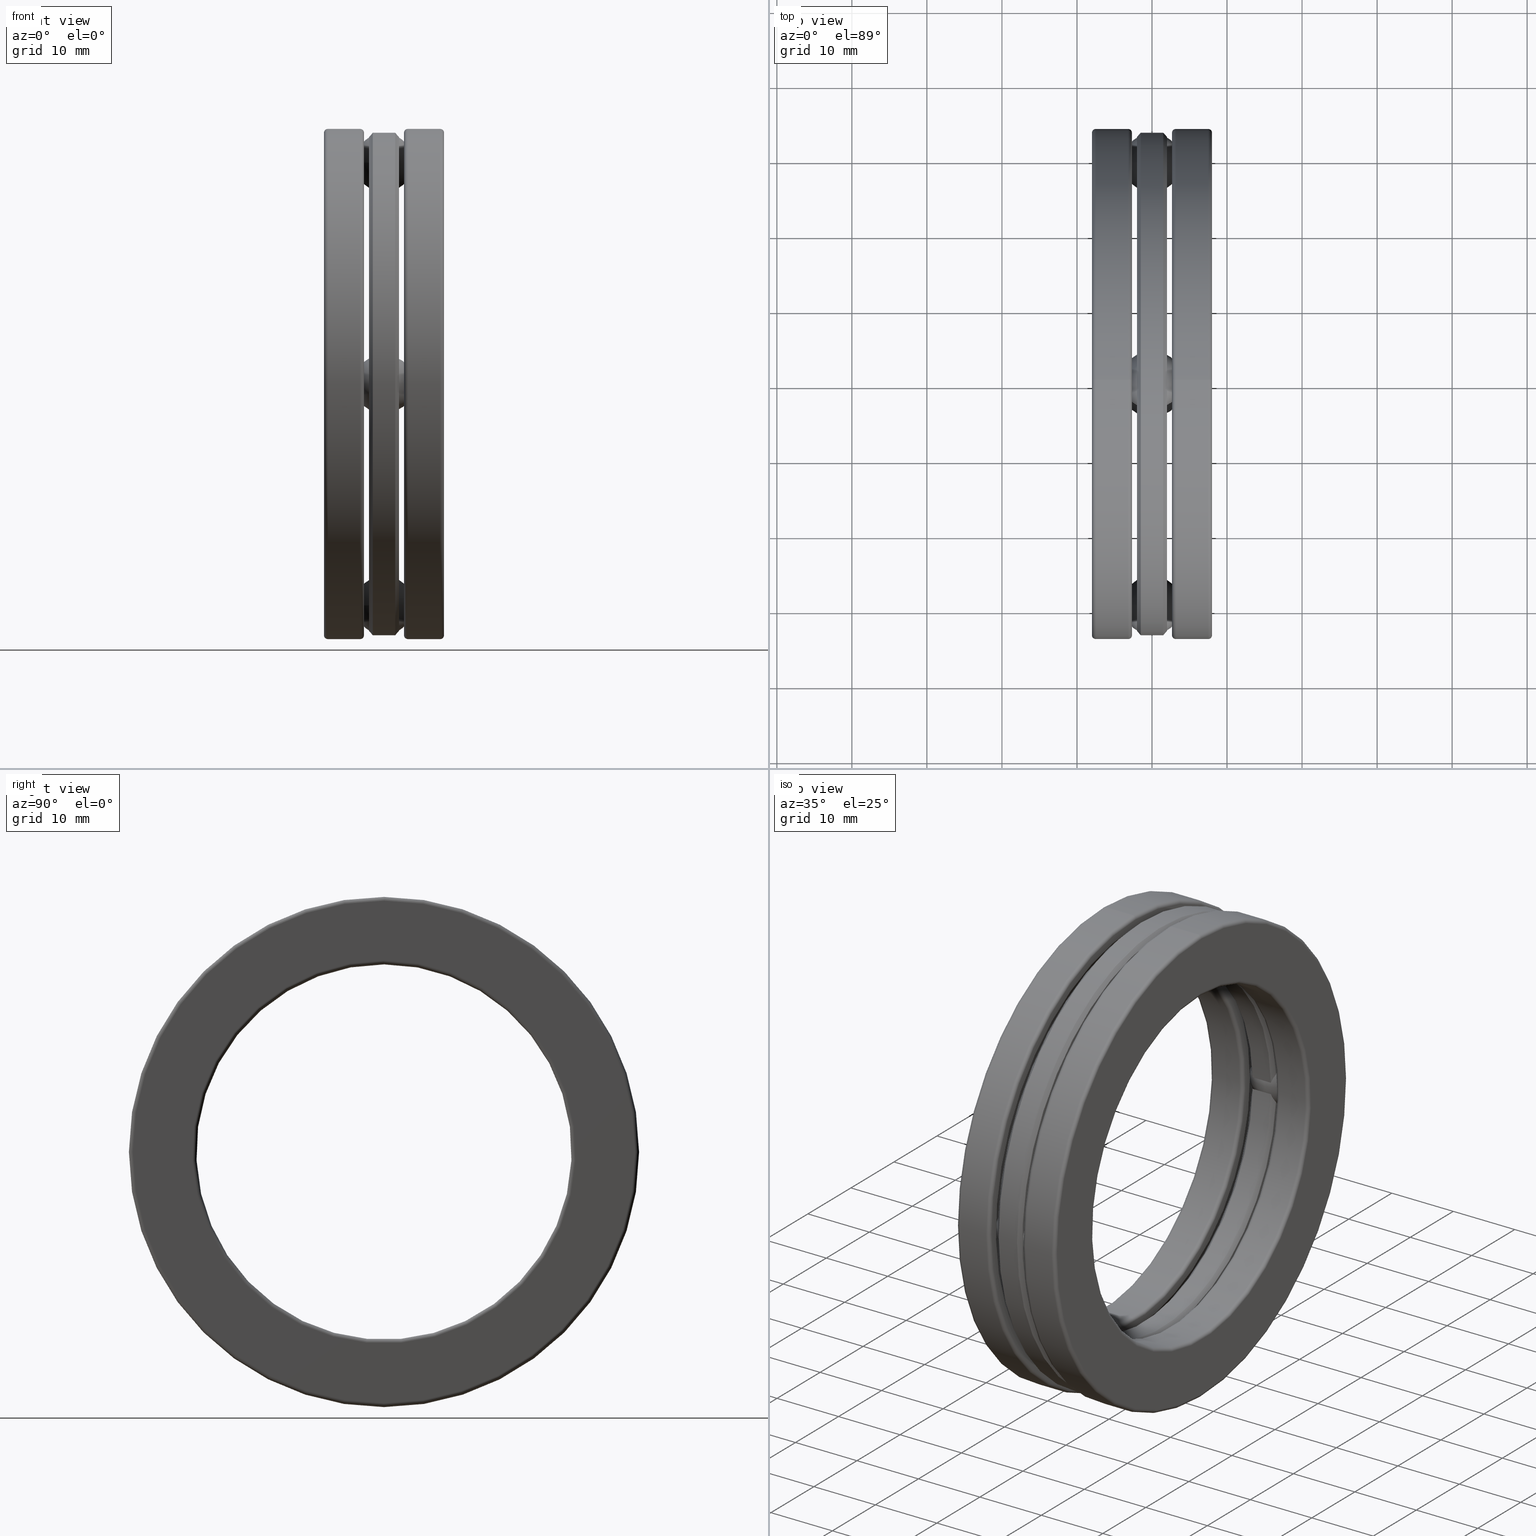
[diagram: canonical four-view strip — front | top / right | iso, engineering-drawing reading convention]
A machine part, canonical four-view strip (front | top / right | iso — engineering-drawing reading convention). The complete STEP part file that produces these views, byte-faithful:
ISO-10303-21;
HEADER;
FILE_DESCRIPTION (( 'STEP AP203' ),
    '1' );
FILE_NAME ('2909-ABB.step',
    '2017-03-07T16:43:01',
    ( '' ),
    ( '' ),
    'SwSTEP 2.0',
    'SolidWorks 2017',
    '' );
FILE_SCHEMA (( 'CONFIG_CONTROL_DESIGN' ));
ENDSEC;

DATA;
#1 = ADVANCED_FACE ( 'NONE', ( #827, #728 ), #707, .F. ) ;
#2 = EDGE_CURVE ( 'NONE', #548, #603, #637, .T. ) ;
#3 = FACE_OUTER_BOUND ( 'NONE', #605, .T. ) ;
#4 = ORIENTED_EDGE ( 'NONE', *, *, #626, .F. ) ;
#5 = CIRCLE ( 'NONE', #414, 1.298499999999999800 ) ;
#6 = DIMENSIONAL_EXPONENTS ( 1.000000000000000000, 0.0000000000000000000, 0.0000000000000000000, 0.0000000000000000000, 0.0000000000000000000, 0.0000000000000000000, 0.0000000000000000000 ) ;
#7 = DIRECTION ( 'NONE',  ( 0.0000000000000000000, 0.0000000000000000000, 1.000000000000000000 ) ) ;
#8 = CARTESIAN_POINT ( 'NONE',  ( -0.2949999999999999800, 0.0000000000000000000, 0.0000000000000000000 ) ) ;
#9 = B_SPLINE_CURVE_WITH_KNOTS ( 'NONE', 3,
 ( #57, #814, #497, #616 ),
 .UNSPECIFIED., .F., .F.,
 ( 4, 4 ),
 ( 8.445651201812674100E-007, 0.001354426176429407300 ),
 .UNSPECIFIED. ) ;
#10 = UNCERTAINTY_MEASURE_WITH_UNIT (LENGTH_MEASURE( 1.000000000000000100E-005 ), #388, 'distance_accuracy_value', 'NONE');
#11 = AXIS2_PLACEMENT_3D ( 'NONE', #115, #742, #112 ) ;
#12 = CARTESIAN_POINT ( 'NONE',  ( -0.05875000000000001100, 0.0000000000000000000, 0.0000000000000000000 ) ) ;
#13 = ADVANCED_FACE ( 'NONE', ( #709 ), #149, .T. ) ;
#14 = ORIENTED_EDGE ( 'NONE', *, *, #266, .T. ) ;
#15 = ORIENTED_EDGE ( 'NONE', *, *, #514, .F. ) ;
#16 = PERSON_AND_ORGANIZATION ( #566, #741 ) ;
#17 = DIRECTION ( 'NONE',  ( -1.000000000000000000, -0.0000000000000000000, -0.0000000000000000000 ) ) ;
#18 = FACE_OUTER_BOUND ( 'NONE', #103, .T. ) ;
#19 = EDGE_CURVE ( 'NONE', #168, #630, #649, .T. ) ;
#20 = DIRECTION ( 'NONE',  ( 0.0000000000000000000, 0.0000000000000000000, 1.000000000000000000 ) ) ;
#21 = EDGE_CURVE ( 'NONE', #603, #627, #826, .T. ) ;
#22 = AXIS2_PLACEMENT_3D ( 'NONE', #42, #479, #483 ) ;
#23 = CIRCLE ( 'NONE', #511, 0.9844999999999998200 ) ;
#24 = DIRECTION ( 'NONE',  ( -1.000000000000000000, -0.0000000000000000000, -0.0000000000000000000 ) ) ;
#25 = ORIENTED_EDGE ( 'NONE', *, *, #85, .F. ) ;
#26 = DATE_AND_TIME ( #392, #251 ) ;
#27 = VERTEX_POINT ( 'NONE', #397 ) ;
#28 = FACE_OUTER_BOUND ( 'NONE', #216, .T. ) ;
#29 = DIRECTION ( 'NONE',  ( -1.000000000000000000, -0.0000000000000000000, -0.0000000000000000000 ) ) ;
#30 = CARTESIAN_POINT ( 'NONE',  ( -0.07874999999999994500, 1.161500000000000000, 0.0000000000000000000 ) ) ;
#31 = DIRECTION ( 'NONE',  ( 0.0000000000000000000, 0.0000000000000000000, 1.000000000000000000 ) ) ;
#32 = FACE_OUTER_BOUND ( 'NONE', #562, .T. ) ;
#33 = EDGE_CURVE ( 'NONE', #607, #607, #538, .T. ) ;
#34 = ORIENTED_EDGE ( 'NONE', *, *, #810, .T. ) ;
#35 = ORIENTED_EDGE ( 'NONE', *, *, #682, .F. ) ;
#36 = LOCAL_TIME ( 11, 43, 1.000000000000000000, #363 ) ;
#37 = DIRECTION ( 'NONE',  ( 0.0000000000000000000, 0.0000000000000000000, 1.000000000000000000 ) ) ;
#38 = EDGE_CURVE ( 'NONE', #744, #744, #23, .T. ) ;
#39 = CARTESIAN_POINT ( 'NONE',  ( -0.06993065417334060100, 1.013642126733179200, 0.06563592173982746300 ) ) ;
#40 = AXIS2_PLACEMENT_3D ( 'NONE', #8, #796, #277 ) ;
#41 = CARTESIAN_POINT ( 'NONE',  ( 0.06295834771157975100, 1.007591937388103300, -0.05045305938305824600 ) ) ;
#42 = CARTESIAN_POINT ( 'NONE',  ( -0.2949999999999999800, 0.0000000000000000000, 0.0000000000000000000 ) ) ;
#43 = CARTESIAN_POINT ( 'NONE',  ( -0.07874999999999994500, 1.161500000000000000, 0.0000000000000000000 ) ) ;
#44 = CARTESIAN_POINT ( 'NONE',  ( 0.05874999999999998300, 0.0000000000000000000, 0.0000000000000000000 ) ) ;
#45 = ORIENTED_EDGE ( 'NONE', *, *, #279, .T. ) ;
#46 = DIRECTION ( 'NONE',  ( 0.0000000000000000000, 1.000000000000000000, -3.491481338843133400E-015 ) ) ;
#47 = EDGE_CURVE ( 'NONE', #152, #152, #664, .T. ) ;
#48 = ORIENTED_EDGE ( 'NONE', *, *, #33, .F. ) ;
#49 = CIRCLE ( 'NONE', #601, 1.004499999999999900 ) ;
#50 = CARTESIAN_POINT ( 'NONE',  ( 0.3150000000000001100, 0.0000000000000000000, 0.0000000000000000000 ) ) ;
#51 = DIRECTION ( 'NONE',  ( 0.0000000000000000000, 0.0000000000000000000, 1.000000000000000000 ) ) ;
#52 = ADVANCED_FACE ( 'NONE', ( #59, #677 ), #358, .T. ) ;
#53 = APPLICATION_PROTOCOL_DEFINITION ( 'international standard', 'config_control_design', 1994, #435 ) ;
#54 = CARTESIAN_POINT ( 'NONE',  ( 0.06360343731708327500, 1.312448222807910400, 0.05677274641215771700 ) ) ;
#55 = DIRECTION ( 'NONE',  ( 0.0000000000000000000, 0.0000000000000000000, 1.000000000000000000 ) ) ;
#56 = CARTESIAN_POINT ( 'NONE',  ( 0.1050021000000006000, 0.0000000000000000000, 1.004499999999999900 ) ) ;
#57 = CARTESIAN_POINT ( 'NONE',  ( 0.05875000000000001100, 1.003952432199741700, 0.03316268807293924100 ) ) ;
#58 = CARTESIAN_POINT ( 'NONE',  ( 0.05874999999999998300, 1.317952432199741600, -0.03799521626185624300 ) ) ;
#59 = FACE_OUTER_BOUND ( 'NONE', #783, .T. ) ;
#60 = ORIENTED_EDGE ( 'NONE', *, *, #803, .F. ) ;
#61 = APPROVAL_DATE_TIME ( #830, #491 ) ;
#62 = CARTESIAN_POINT ( 'NONE',  ( 0.05874999999999998300, 1.317952432199741600, -0.03799521626185624300 ) ) ;
#63 = AXIS2_PLACEMENT_3D ( 'NONE', #246, #255, #612 ) ;
#64 = EDGE_CURVE ( 'NONE', #415, #195, #507, .T. ) ;
#65 = ORIENTED_EDGE ( 'NONE', *, *, #292, .F. ) ;
#66 = EDGE_LOOP ( 'NONE', ( #407 ) ) ;
#67 = VERTEX_POINT ( 'NONE', #759 ) ;
#68 = EDGE_LOOP ( 'NONE', ( #804 ) ) ;
#69 = TOROIDAL_SURFACE ( 'NONE', #40, 1.318499999999999800, 0.02000000000000004200 ) ;
#70 = AXIS2_PLACEMENT_3D ( 'NONE', #771, #568, #7 ) ;
#71 = AXIS2_PLACEMENT_3D ( 'NONE', #105, #359, #487 ) ;
#72 = FACE_OUTER_BOUND ( 'NONE', #343, .T. ) ;
#73 = DATE_TIME_ROLE ( 'classification_date' ) ;
#74 = FACE_OUTER_BOUND ( 'NONE', #274, .T. ) ;
#75 = EDGE_LOOP ( 'NONE', ( #4 ) ) ;
#76 = B_SPLINE_CURVE_WITH_KNOTS ( 'NONE', 3,
 ( #488, #366, #436, #54, #302, #311 ),
 .UNSPECIFIED., .F., .F.,
 ( 4, 2, 4 ),
 ( 4.440555414821110800E-007, 0.0007574820016740763200, 0.001514519947806670400 ),
 .UNSPECIFIED. ) ;
#77 = COORDINATED_UNIVERSAL_TIME_OFFSET ( 5, 0, .BEHIND. ) ;
#78 = EDGE_CURVE ( 'NONE', #503, #195, #648, .T. ) ;
#79 = ADVANCED_FACE ( 'NONE', ( #517, #167 ), #585, .T. ) ;
#80 = DIRECTION ( 'NONE',  ( -1.000000000000000000, -0.0000000000000000000, -0.0000000000000000000 ) ) ;
#81 = DIRECTION ( 'NONE',  ( 0.0000000000000000000, 0.0000000000000000000, 1.000000000000000000 ) ) ;
#82 = FACE_OUTER_BOUND ( 'NONE', #793, .T. ) ;
#83 = CARTESIAN_POINT ( 'NONE',  ( 0.0000000000000000000, 0.0000000000000000000, 0.0000000000000000000 ) ) ;
#84 = CARTESIAN_POINT ( 'NONE',  ( 1.707404996040164500E-017, 1.003952432199741700, 0.03316268807293931000 ) ) ;
#85 = EDGE_CURVE ( 'NONE', #444, #444, #351, .T. ) ;
#86 = AXIS2_PLACEMENT_3D ( 'NONE', #43, #813, #624 ) ;
#87 = CARTESIAN_POINT ( 'NONE',  ( -0.07875000000000002800, 0.0000000000000000000, 0.0000000000000000000 ) ) ;
#88 = CARTESIAN_POINT ( 'NONE',  ( 0.07875000000000000100, 0.0000000000000000000, 0.0000000000000000000 ) ) ;
#89 = CIRCLE ( 'NONE', #819, 1.004499999999999900 ) ;
#90 = ORIENTED_EDGE ( 'NONE', *, *, #445, .F. ) ;
#91 = ORIENTED_EDGE ( 'NONE', *, *, #609, .T. ) ;
#92 = VERTEX_POINT ( 'NONE', #554 ) ;
#93 = EDGE_LOOP ( 'NONE', ( #241, #658, #14, #205 ) ) ;
#94 = CARTESIAN_POINT ( 'NONE',  ( 0.1250021000000005900, 0.0000000000000000000, 0.0000000000000000000 ) ) ;
#95 = TOROIDAL_SURFACE ( 'NONE', #428, 1.004499999999999900, 0.01999999999999994100 ) ;
#96 = EDGE_CURVE ( 'NONE', #242, #242, #328, .T. ) ;
#97 = CARTESIAN_POINT ( 'NONE',  ( -0.07427570226872180800, 1.300423267846805700, -0.08186901794941021900 ) ) ;
#98 = MANIFOLD_SOLID_BREP ( 'CirPattern4[1]', #409 ) ;
#99 = FACE_OUTER_BOUND ( 'NONE', #530, .T. ) ;
#100 = ORIENTED_EDGE ( 'NONE', *, *, #108, .T. ) ;
#101 = EDGE_LOOP ( 'NONE', ( #519 ) ) ;
#102 = VERTEX_POINT ( 'NONE', #691 ) ;
#103 = EDGE_LOOP ( 'NONE', ( #150 ) ) ;
#104 = AXIS2_PLACEMENT_3D ( 'NONE', #188, #748, #758 ) ;
#105 = CARTESIAN_POINT ( 'NONE',  ( 7.112136286048253700E-017, 1.161500000000000000, 0.0000000000000000000 ) ) ;
#106 = DIRECTION ( 'NONE',  ( -1.000000000000000000, -0.0000000000000000000, -0.0000000000000000000 ) ) ;
#107 = DIRECTION ( 'NONE',  ( -1.000000000000000000, -0.0000000000000000000, -0.0000000000000000000 ) ) ;
#108 = EDGE_CURVE ( 'NONE', #299, #299, #191, .T. ) ;
#109 = ORIENTED_EDGE ( 'NONE', *, *, #33, .T. ) ;
#110 = EDGE_LOOP ( 'NONE', ( #531 ) ) ;
#111 = APPROVAL_PERSON_ORGANIZATION ( #581, #335, #324 ) ;
#112 = DIRECTION ( 'NONE',  ( 0.0000000000000000000, 0.0000000000000000000, -1.000000000000000000 ) ) ;
#113 = ORIENTED_EDGE ( 'NONE', *, *, #237, .F. ) ;
#114 = CARTESIAN_POINT ( 'NONE',  ( -0.1050020999999998800, 0.0000000000000000000, 0.0000000000000000000 ) ) ;
#115 = CARTESIAN_POINT ( 'NONE',  ( -0.3150393700787401100, 1.161500000000000000, 0.0000000000000000000 ) ) ;
#116 = AXIS2_PLACEMENT_3D ( 'NONE', #163, #272, #349 ) ;
#117 = CARTESIAN_POINT ( 'NONE',  ( 0.1050021000000006000, 0.0000000000000000000, 0.0000000000000000000 ) ) ;
#118 = MECHANICAL_CONTEXT ( 'NONE', #435, 'mechanical' ) ;
#119 = CARTESIAN_POINT ( 'NONE',  ( 0.0000000000000000000, 0.0000000000000000000, 0.0000000000000000000 ) ) ;
#120 = CIRCLE ( 'NONE', #464, 1.338499999999999600 ) ;
#121 = AXIS2_PLACEMENT_3D ( 'NONE', #174, #674, #164 ) ;
#122 = ORIENTED_EDGE ( 'NONE', *, *, #38, .F. ) ;
#123 = ORIENTED_EDGE ( 'NONE', *, *, #128, .F. ) ;
#124 = TOROIDAL_SURFACE ( 'NONE', #137, 1.318499999999999600, 0.02000000000000016300 ) ;
#125 = CARTESIAN_POINT ( 'NONE',  ( -0.3150000000000000000, 0.0000000000000000000, 1.318499999999999800 ) ) ;
#126 = CARTESIAN_POINT ( 'NONE',  ( -0.05874999999999998300, 1.003952432199741700, 0.03316268807293931000 ) ) ;
#127 = EDGE_LOOP ( 'NONE', ( #15, #719, #90, #35 ) ) ;
#128 = EDGE_CURVE ( 'NONE', #615, #627, #657, .T. ) ;
#129 = CARTESIAN_POINT ( 'NONE',  ( 0.07027382158361213100, 1.304923247158528100, -0.07374496623166407200 ) ) ;
#130 = CC_DESIGN_PERSON_AND_ORGANIZATION_ASSIGNMENT ( #230, #270, ( #582 ) ) ;
#131 = DIRECTION ( 'NONE',  ( -1.000000000000000000, -0.0000000000000000000, -0.0000000000000000000 ) ) ;
#132 = FACE_BOUND ( 'NONE', #101, .T. ) ;
#133 = ORIENTED_EDGE ( 'NONE', *, *, #21, .T. ) ;
#134 = DIRECTION ( 'NONE',  ( 0.0000000000000000000, 0.0000000000000000000, 1.000000000000000000 ) ) ;
#135 = EDGE_LOOP ( 'NONE', ( #579 ) ) ;
#136 = VERTEX_POINT ( 'NONE', #684 ) ;
#137 = AXIS2_PLACEMENT_3D ( 'NONE', #542, #233, #368 ) ;
#138 = EDGE_LOOP ( 'NONE', ( #203 ) ) ;
#139 = FACE_BOUND ( 'NONE', #408, .T. ) ;
#140 = DATE_TIME_ROLE ( 'creation_date' ) ;
#141 = EDGE_CURVE ( 'NONE', #627, #184, #633, .T. ) ;
#142 = CARTESIAN_POINT ( 'NONE',  ( -0.1050020999999998800, 0.0000000000000000000, 0.0000000000000000000 ) ) ;
#143 = CIRCLE ( 'NONE', #502, 1.046128604084071600 ) ;
#144 = ORIENTED_EDGE ( 'NONE', *, *, #803, .T. ) ;
#145 = VECTOR ( 'NONE', #525, 39.37007874015748100 ) ;
#146 = DIRECTION ( 'NONE',  ( -0.0000000000000000000, -0.0000000000000000000, -1.000000000000000000 ) ) ;
#147 = SECURITY_CLASSIFICATION_LEVEL ( 'unclassified' ) ;
#148 = AXIS2_PLACEMENT_3D ( 'NONE', #50, #303, #738 ) ;
#149 = CONICAL_SURFACE ( 'NONE', #729, 1.318499999999999800, 0.7853981633974498300 ) ;
#150 = ORIENTED_EDGE ( 'NONE', *, *, #790, .F. ) ;
#151 = ORIENTED_EDGE ( 'NONE', *, *, #595, .F. ) ;
#152 = VERTEX_POINT ( 'NONE', #378 ) ;
#153 = AXIS2_PLACEMENT_3D ( 'NONE', #284, #721, #210 ) ;
#154 = CARTESIAN_POINT ( 'NONE',  ( -0.3150393700787401100, 1.161500000000000000, 0.0000000000000000000 ) ) ;
#155 = DIRECTION ( 'NONE',  ( 0.0000000000000000000, 0.0000000000000000000, 1.000000000000000000 ) ) ;
#156 = DIRECTION ( 'NONE',  ( 0.0000000000000000000, 0.0000000000000000000, 1.000000000000000000 ) ) ;
#157 = TOROIDAL_SURFACE ( 'NONE', #387, 1.004499999999999900, 0.01999999999999968500 ) ;
#158 = VERTEX_POINT ( 'NONE', #353 ) ;
#159 = ORIENTED_EDGE ( 'NONE', *, *, #456, .T. ) ;
#160 = CARTESIAN_POINT ( 'NONE',  ( -0.1050020999999998800, 0.0000000000000000000, 0.0000000000000000000 ) ) ;
#161 = CIRCLE ( 'NONE', #781, 0.1610000000000000000 ) ;
#162 = AXIS2_PLACEMENT_3D ( 'NONE', #83, #713, #215 ) ;
#163 = CARTESIAN_POINT ( 'NONE',  ( 0.2950000000000006500, 0.0000000000000000000, 0.0000000000000000000 ) ) ;
#164 = DIRECTION ( 'NONE',  ( 0.0000000000000000000, 0.0000000000000000000, -1.000000000000000000 ) ) ;
#165 = EDGE_CURVE ( 'NONE', #92, #92, #800, .T. ) ;
#166 = CC_DESIGN_DATE_AND_TIME_ASSIGNMENT ( #196, #73, ( #778 ) ) ;
#167 = FACE_OUTER_BOUND ( 'NONE', #278, .T. ) ;
#168 = VERTEX_POINT ( 'NONE', #471 ) ;
#169 = LOCAL_TIME ( 11, 43, 1.000000000000000000, #344 ) ;
#170 = FACE_OUTER_BOUND ( 'NONE', #817, .T. ) ;
#171 = DIRECTION ( 'NONE',  ( -1.000000000000000000, -0.0000000000000000000, -0.0000000000000000000 ) ) ;
#172 =( GEOMETRIC_REPRESENTATION_CONTEXT ( 3 ) GLOBAL_UNCERTAINTY_ASSIGNED_CONTEXT ( ( #10 ) ) GLOBAL_UNIT_ASSIGNED_CONTEXT ( ( #388, #376, #825 ) ) REPRESENTATION_CONTEXT ( 'NONE', 'WORKASPACE' ) );
#173 = DIRECTION ( 'NONE',  ( -1.000000000000000000, -0.0000000000000000000, -0.0000000000000000000 ) ) ;
#174 = CARTESIAN_POINT ( 'NONE',  ( 0.07875000000000000100, 1.161500000000000000, 0.0000000000000000000 ) ) ;
#175 = DIRECTION ( 'NONE',  ( 0.0000000000000000000, 0.0000000000000000000, 1.000000000000000000 ) ) ;
#176 = DIRECTION ( 'NONE',  ( -1.000000000000000000, -0.0000000000000000000, -0.0000000000000000000 ) ) ;
#177 = CARTESIAN_POINT ( 'NONE',  ( 0.0000000000000000000, 0.0000000000000000000, 0.0000000000000000000 ) ) ;
#178 = AXIS2_PLACEMENT_3D ( 'NONE', #94, #24, #156 ) ;
#179 = ADVANCED_FACE ( 'NONE', ( #3, #99 ), #180, .T. ) ;
#180 = TOROIDAL_SURFACE ( 'NONE', #553, 1.004499999999999900, 0.02000000000000009400 ) ;
#181 = EDGE_LOOP ( 'NONE', ( #711, #425, #457, #401 ) ) ;
#182 = CARTESIAN_POINT ( 'NONE',  ( 0.2950000000000006500, 0.0000000000000000000, 0.0000000000000000000 ) ) ;
#183 = DIRECTION ( 'NONE',  ( -1.000000000000000000, -0.0000000000000000000, -0.0000000000000000000 ) ) ;
#184 = VERTEX_POINT ( 'NONE', #411 ) ;
#185 = ADVANCED_BREP_SHAPE_REPRESENTATION ( '2909-ABB', ( #393, #593, #220, #98, #506, #447, #209, #768 ), #172 ) ;
#186 = VECTOR ( 'NONE', #583, 39.37007874015748100 ) ;
#187 = DIRECTION ( 'NONE',  ( 1.000000000000000000, 0.0000000000000000000, 0.0000000000000000000 ) ) ;
#188 = CARTESIAN_POINT ( 'NONE',  ( -0.07875000000000002800, 0.0000000000000000000, 0.0000000000000000000 ) ) ;
#189 = ADVANCED_FACE ( 'NONE', ( ), #399, .T. ) ;
#190 = CARTESIAN_POINT ( 'NONE',  ( 0.1050021000000006000, 0.0000000000000000000, 1.046128604084071600 ) ) ;
#191 = CIRCLE ( 'NONE', #645, 1.276871395915928800 ) ;
#192 = CARTESIAN_POINT ( 'NONE',  ( 0.07427093626631646500, 1.300428596003605900, -0.08186103324463722700 ) ) ;
#193 = AXIS2_PLACEMENT_3D ( 'NONE', #235, #173, #671 ) ;
#194 = ORIENTED_EDGE ( 'NONE', *, *, #514, .T. ) ;
#195 = VERTEX_POINT ( 'NONE', #126 ) ;
#196 = DATE_AND_TIME ( #689, #36 ) ;
#197 = CIRCLE ( 'NONE', #453, 1.298499999999999800 ) ;
#198 = AXIS2_PLACEMENT_3D ( 'NONE', #88, #17, #20 ) ;
#199 = DIRECTION ( 'NONE',  ( -1.000000000000000000, -0.0000000000000000000, -0.0000000000000000000 ) ) ;
#200 = EDGE_LOOP ( 'NONE', ( #591 ) ) ;
#201 = ADVANCED_FACE ( 'NONE', ( #500, #639 ), #157, .T. ) ;
#202 = DIRECTION ( 'NONE',  ( 0.0000000000000000000, 0.0000000000000000000, -1.000000000000000000 ) ) ;
#203 = ORIENTED_EDGE ( 'NONE', *, *, #584, .T. ) ;
#204 = VERTEX_POINT ( 'NONE', #125 ) ;
#205 = ORIENTED_EDGE ( 'NONE', *, *, #279, .F. ) ;
#206 = LINE ( 'NONE', #340, #186 ) ;
#207 = ADVANCED_FACE ( 'NONE', ( #474 ), #625, .F. ) ;
#208 = CARTESIAN_POINT ( 'NONE',  ( 0.1050021000000006000, 0.0000000000000000000, 0.0000000000000000000 ) ) ;
#209 = MANIFOLD_SOLID_BREP ( 'Cut-Extrude1', #480 ) ;
#210 = DIRECTION ( 'NONE',  ( 0.0000000000000000000, 0.0000000000000000000, 1.000000000000000000 ) ) ;
#211 = FACE_OUTER_BOUND ( 'NONE', #492, .T. ) ;
#212 = CLOSED_SHELL ( 'NONE', ( #587, #245, #52, #747, #679, #329, #383, #1, #578, #79 ) ) ;
#213 = EDGE_CURVE ( 'NONE', #503, #630, #9, .T. ) ;
#214 = ORIENTED_EDGE ( 'NONE', *, *, #213, .F. ) ;
#215 = DIRECTION ( 'NONE',  ( 0.0000000000000000000, 0.0000000000000000000, 1.000000000000000000 ) ) ;
#216 = EDGE_LOOP ( 'NONE', ( #371 ) ) ;
#217 = DIRECTION ( 'NONE',  ( 0.0000000000000000000, 0.0000000000000000000, 1.000000000000000000 ) ) ;
#218 = ADVANCED_FACE ( 'NONE', ( #577, #32 ), #772, .T. ) ;
#219 = CARTESIAN_POINT ( 'NONE',  ( -0.1050020999999998800, 0.0000000000000000000, 0.0000000000000000000 ) ) ;
#220 = MANIFOLD_SOLID_BREP ( 'Revolve4', #718 ) ;
#221 = EDGE_LOOP ( 'NONE', ( #48 ) ) ;
#222 = COORDINATED_UNIVERSAL_TIME_OFFSET ( 5, 0, .BEHIND. ) ;
#223 = AXIS2_PLACEMENT_3D ( 'NONE', #647, #350, #714 ) ;
#224 = ORIENTED_EDGE ( 'NONE', *, *, #78, .T. ) ;
#225 = DIRECTION ( 'NONE',  ( -1.000000000000000000, -0.0000000000000000000, -0.0000000000000000000 ) ) ;
#226 = DIRECTION ( 'NONE',  ( -1.000000000000000000, -0.0000000000000000000, -0.0000000000000000000 ) ) ;
#227 = CARTESIAN_POINT ( 'NONE',  ( -0.2949999999999999800, 0.0000000000000000000, 0.0000000000000000000 ) ) ;
#228 = CYLINDRICAL_SURFACE ( 'NONE', #692, 0.9844999999999999300 ) ;
#229 = ORIENTED_EDGE ( 'NONE', *, *, #685, .T. ) ;
#230 = PERSON_AND_ORGANIZATION ( #566, #741 ) ;
#231 = CARTESIAN_POINT ( 'NONE',  ( -0.05874999999999998300, 1.003952432199741700, 0.03316268807293931000 ) ) ;
#232 = AXIS2_PLACEMENT_3D ( 'NONE', #154, #589, #403 ) ;
#233 = DIRECTION ( 'NONE',  ( -1.000000000000000000, -0.0000000000000000000, -0.0000000000000000000 ) ) ;
#234 = CARTESIAN_POINT ( 'NONE',  ( -0.06993065417334064200, 1.013642126733179200, -0.06563592173982749100 ) ) ;
#235 = CARTESIAN_POINT ( 'NONE',  ( 0.3150000000000001100, 0.0000000000000000000, 0.0000000000000000000 ) ) ;
#236 = CARTESIAN_POINT ( 'NONE',  ( -0.07874999999999995900, 0.0000000000000000000, 0.0000000000000000000 ) ) ;
#237 = EDGE_CURVE ( 'NONE', #598, #598, #143, .T. ) ;
#238 = PLANE ( 'NONE',  #521 ) ;
#239 = ORIENTED_EDGE ( 'NONE', *, *, #760, .T. ) ;
#240 = DIRECTION ( 'NONE',  ( 1.000000000000000000, 0.0000000000000000000, 0.0000000000000000000 ) ) ;
#241 = ORIENTED_EDGE ( 'NONE', *, *, #527, .T. ) ;
#242 = VERTEX_POINT ( 'NONE', #753 ) ;
#243 = CARTESIAN_POINT ( 'NONE',  ( 0.3150000000000001100, 0.0000000000000000000, 1.004499999999999900 ) ) ;
#244 = PLANE ( 'NONE',  #367 ) ;
#245 = ADVANCED_FACE ( 'NONE', ( #613, #285 ), #244, .T. ) ;
#246 = CARTESIAN_POINT ( 'NONE',  ( -0.07874999999999995900, -1.962892604936680000E-017, 0.0000000000000000000 ) ) ;
#247 = AXIS2_PLACEMENT_3D ( 'NONE', #142, #396, #134 ) ;
#248 = FACE_OUTER_BOUND ( 'NONE', #263, .T. ) ;
#249 = CLOSED_SHELL ( 'NONE', ( #189 ) ) ;
#250 = ADVANCED_FACE ( 'NONE', ( #318, #686 ), #380, .F. ) ;
#251 = LOCAL_TIME ( 11, 43, 1.000000000000000000, #551 ) ;
#252 = CARTESIAN_POINT ( 'NONE',  ( -0.1050020999999998800, 0.0000000000000000000, 1.276871395915928800 ) ) ;
#253 = FACE_OUTER_BOUND ( 'NONE', #743, .T. ) ;
#254 = AXIS2_PLACEMENT_3D ( 'NONE', #794, #727, #51 ) ;
#255 = DIRECTION ( 'NONE',  ( 1.000000000000000000, 0.0000000000000000000, 0.0000000000000000000 ) ) ;
#256 = CARTESIAN_POINT ( 'NONE',  ( -0.07874999999999994500, 1.021421222557038500, -0.07936583717245769600 ) ) ;
#257 = PLANE ( 'NONE',  #734 ) ;
#258 = AXIS2_PLACEMENT_3D ( 'NONE', #512, #146, #576 ) ;
#259 = EDGE_LOOP ( 'NONE', ( #341, #159, #273, #468 ) ) ;
#260 = ORIENTED_EDGE ( 'NONE', *, *, #626, .T. ) ;
#261 = APPROVAL_DATE_TIME ( #417, #335 ) ;
#262 = APPROVAL_ROLE ( '' ) ;
#263 = EDGE_LOOP ( 'NONE', ( #773, #45, #619, #829 ) ) ;
#264 = FACE_OUTER_BOUND ( 'NONE', #75, .T. ) ;
#265 = PRODUCT ( '2909-ABB', '2909-ABB', '', ( #118 ) ) ;
#266 = EDGE_CURVE ( 'NONE', #490, #615, #76, .T. ) ;
#267 = DIRECTION ( 'NONE',  ( 0.0000000000000000000, 0.0000000000000000000, 1.000000000000000000 ) ) ;
#268 = PERSON_AND_ORGANIZATION_ROLE ( 'design_supplier' ) ;
#269 = DIRECTION ( 'NONE',  ( -1.000000000000000000, -0.0000000000000000000, -0.0000000000000000000 ) ) ;
#270 = PERSON_AND_ORGANIZATION_ROLE ( 'creator' ) ;
#271 = FACE_BOUND ( 'NONE', #300, .T. ) ;
#272 = DIRECTION ( 'NONE',  ( -1.000000000000000000, -0.0000000000000000000, -0.0000000000000000000 ) ) ;
#273 = ORIENTED_EDGE ( 'NONE', *, *, #213, .T. ) ;
#274 = EDGE_LOOP ( 'NONE', ( #122 ) ) ;
#275 = VERTEX_POINT ( 'NONE', #386 ) ;
#276 = DIRECTION ( 'NONE',  ( 0.0000000000000000000, 0.0000000000000000000, -1.000000000000000000 ) ) ;
#277 = DIRECTION ( 'NONE',  ( 0.0000000000000000000, 0.0000000000000000000, 1.000000000000000000 ) ) ;
#278 = EDGE_LOOP ( 'NONE', ( #60 ) ) ;
#279 = EDGE_CURVE ( 'NONE', #571, #615, #413, .T. ) ;
#280 = EDGE_LOOP ( 'NONE', ( #144 ) ) ;
#281 = VERTEX_POINT ( 'NONE', #243 ) ;
#282 = CARTESIAN_POINT ( 'NONE',  ( 0.1050021000000006000, 0.0000000000000000000, 0.0000000000000000000 ) ) ;
#283 = SHAPE_DEFINITION_REPRESENTATION ( #807, #185 ) ;
#284 = CARTESIAN_POINT ( 'NONE',  ( 0.0000000000000000000, 0.0000000000000000000, 0.0000000000000000000 ) ) ;
#285 = FACE_OUTER_BOUND ( 'NONE', #310, .T. ) ;
#286 = DIRECTION ( 'NONE',  ( 0.0000000000000000000, 0.0000000000000000000, 1.000000000000000000 ) ) ;
#287 = FACE_OUTER_BOUND ( 'NONE', #518, .T. ) ;
#288 = PRODUCT_DEFINITION ( 'UNKNOWN', '', #582, #523 ) ;
#289 = ORIENTED_EDGE ( 'NONE', *, *, #745, .F. ) ;
#290 = CARTESIAN_POINT ( 'NONE',  ( 7.112136286048253700E-017, 1.216606672519889800E-014, 1.161500000000000000 ) ) ;
#291 = CARTESIAN_POINT ( 'NONE',  ( 0.05875000000000001100, 0.0000000000000000000, 0.0000000000000000000 ) ) ;
#292 = EDGE_CURVE ( 'NONE', #168, #426, #482, .T. ) ;
#293 = CC_DESIGN_PERSON_AND_ORGANIZATION_ASSIGNMENT ( #541, #449, ( #778 ) ) ;
#294 = CARTESIAN_POINT ( 'NONE',  ( -0.3150000000000000000, 0.0000000000000000000, 0.0000000000000000000 ) ) ;
#295 = CIRCLE ( 'NONE', #547, 1.024500000000000200 ) ;
#296 = EDGE_LOOP ( 'NONE', ( #762 ) ) ;
#297 = ORIENTED_EDGE ( 'NONE', *, *, #527, .F. ) ;
#298 = DIRECTION ( 'NONE',  ( 0.0000000000000000000, 0.0000000000000000000, 1.000000000000000000 ) ) ;
#299 = VERTEX_POINT ( 'NONE', #252 ) ;
#300 = EDGE_LOOP ( 'NONE', ( #659 ) ) ;
#301 = FACE_OUTER_BOUND ( 'NONE', #332, .T. ) ;
#302 = CARTESIAN_POINT ( 'NONE',  ( 0.06080196196124219900, 1.315623106460699100, 0.04758665205595959100 ) ) ;
#303 = DIRECTION ( 'NONE',  ( -1.000000000000000000, -0.0000000000000000000, -0.0000000000000000000 ) ) ;
#304 = CARTESIAN_POINT ( 'NONE',  ( 0.06993065417334067000, 1.013642126733179200, -0.06563592173982751900 ) ) ;
#305 = DIRECTION ( 'NONE',  ( 1.000000000000000000, -0.0000000000000000000, 0.0000000000000000000 ) ) ;
#306 = EDGE_CURVE ( 'NONE', #102, #102, #120, .T. ) ;
#307 = DIRECTION ( 'NONE',  ( 1.000000000000000000, 0.0000000000000000000, 0.0000000000000000000 ) ) ;
#308 = ADVANCED_FACE ( 'NONE', ( #271, #537 ), #238, .F. ) ;
#309 = DIRECTION ( 'NONE',  ( 0.0000000000000000000, 0.0000000000000000000, 1.000000000000000000 ) ) ;
#310 = EDGE_LOOP ( 'NONE', ( #678 ) ) ;
#311 = CARTESIAN_POINT ( 'NONE',  ( 0.05874999999999998300, 1.317952432199741600, 0.03799521626185624300 ) ) ;
#312 = ADVANCED_FACE ( 'NONE', ( #132, #489 ), #749, .F. ) ;
#313 = CARTESIAN_POINT ( 'NONE',  ( 0.05875000000000001100, 1.003952432199741700, 0.03316268807293924100 ) ) ;
#314 = B_SPLINE_CURVE_WITH_KNOTS ( 'NONE', 3,
 ( #473, #234, #672, #617 ),
 .UNSPECIFIED., .F., .F.,
 ( 4, 4 ),
 ( 4.028049207026135500E-007, 0.001353984416229925900 ),
 .UNSPECIFIED. ) ;
#315 = CARTESIAN_POINT ( 'NONE',  ( 0.1250021000000005900, 0.0000000000000000000, 0.9844999999999998200 ) ) ;
#316 = CARTESIAN_POINT ( 'NONE',  ( 0.07875000000000000100, 1.295421222557038100, -0.08936501635891165600 ) ) ;
#317 = AXIS2_PLACEMENT_3D ( 'NONE', #688, #824, #55 ) ;
#318 = FACE_OUTER_BOUND ( 'NONE', #698, .T. ) ;
#319 = DIRECTION ( 'NONE',  ( -1.000000000000000000, -0.0000000000000000000, -0.0000000000000000000 ) ) ;
#320 = ORIENTED_EDGE ( 'NONE', *, *, #78, .F. ) ;
#321 = EDGE_LOOP ( 'NONE', ( #477 ) ) ;
#322 = CALENDAR_DATE ( 2017, 7, 3 ) ;
#323 = CIRCLE ( 'NONE', #663, 1.046128604084071200 ) ;
#324 = APPROVAL_ROLE ( '' ) ;
#325 = AXIS2_PLACEMENT_3D ( 'NONE', #219, #784, #655 ) ;
#326 = CARTESIAN_POINT ( 'NONE',  ( -0.05875000000000001100, 1.317952432199741600, 0.03799521626185624300 ) ) ;
#327 = APPLICATION_CONTEXT ( 'configuration controlled 3d designs of mechanical parts and assemblies' ) ;
#328 = CIRCLE ( 'NONE', #434, 0.9845000000000001500 ) ;
#329 = ADVANCED_FACE ( 'NONE', ( #338, #211 ), #356, .F. ) ;
#330 = ORIENTED_EDGE ( 'NONE', *, *, #141, .F. ) ;
#331 = APPLICATION_PROTOCOL_DEFINITION ( 'international standard', 'config_control_design', 1994, #327 ) ;
#332 = EDGE_LOOP ( 'NONE', ( #642, #391, #752, #382 ) ) ;
#333 = CYLINDRICAL_SURFACE ( 'NONE', #162, 1.338500000000000000 ) ;
#334 = ADVANCED_FACE ( 'NONE', ( #437 ), #596, .F. ) ;
#335 = APPROVAL ( #836, 'UNSPECIFIED' ) ;
#336 = DIRECTION ( 'NONE',  ( 0.0000000000000000000, 0.0000000000000000000, 1.000000000000000000 ) ) ;
#337 = DIRECTION ( 'NONE',  ( -1.000000000000000000, -0.0000000000000000000, -0.0000000000000000000 ) ) ;
#338 = FACE_BOUND ( 'NONE', #569, .T. ) ;
#339 = AXIS2_PLACEMENT_3D ( 'NONE', #290, #535, #355 ) ;
#340 = CARTESIAN_POINT ( 'NONE',  ( -1.707404996040164500E-017, 1.317952432199741600, -0.03799521626185624300 ) ) ;
#341 = ORIENTED_EDGE ( 'NONE', *, *, #292, .T. ) ;
#342 = CC_DESIGN_APPROVAL ( #491, ( #778 ) ) ;
#343 = EDGE_LOOP ( 'NONE', ( #34, #451, #666, #65, #194, #297, #816, #509 ) ) ;
#344 = COORDINATED_UNIVERSAL_TIME_OFFSET ( 5, 0, .BEHIND. ) ;
#345 = SPHERICAL_SURFACE ( 'NONE', #71, 0.1559999999999999200 ) ;
#346 = DIRECTION ( 'NONE',  ( -1.000000000000000000, -0.0000000000000000000, -0.0000000000000000000 ) ) ;
#347 = CARTESIAN_POINT ( 'NONE',  ( -0.07875000000000002800, 1.295421222557038100, -0.08936501635891165600 ) ) ;
#348 = AXIS2_PLACEMENT_3D ( 'NONE', #608, #750, #832 ) ;
#349 = DIRECTION ( 'NONE',  ( 0.0000000000000000000, 0.0000000000000000000, 1.000000000000000000 ) ) ;
#350 = DIRECTION ( 'NONE',  ( -1.000000000000000000, -0.0000000000000000000, -0.0000000000000000000 ) ) ;
#351 = CIRCLE ( 'NONE', #395, 1.338500000000000000 ) ;
#352 = EDGE_CURVE ( 'NONE', #565, #27, #295, .T. ) ;
#353 = CARTESIAN_POINT ( 'NONE',  ( 0.07875000000000000100, 1.295421222557038100, -0.08936501635891165600 ) ) ;
#354 = CARTESIAN_POINT ( 'NONE',  ( -0.1050020999999998800, 0.0000000000000000000, 0.0000000000000000000 ) ) ;
#355 = DIRECTION ( 'NONE',  ( -1.000000000000000000, 0.0000000000000000000, 0.0000000000000000000 ) ) ;
#356 = PLANE ( 'NONE',  #720 ) ;
#357 = SPHERICAL_SURFACE ( 'NONE', #475, 0.1559999999999999200 ) ;
#358 = TOROIDAL_SURFACE ( 'NONE', #599, 1.318499999999999600, 0.02000000000000000700 ) ;
#359 = DIRECTION ( 'NONE',  ( 0.0000000000000000000, 0.0000000000000000000, 1.000000000000000000 ) ) ;
#360 = CARTESIAN_POINT ( 'NONE',  ( -0.1250020999999998700, 0.0000000000000000000, 0.0000000000000000000 ) ) ;
#361 = DIRECTION ( 'NONE',  ( 0.0000000000000000000, 0.0000000000000000000, 1.000000000000000000 ) ) ;
#362 = ORIENTED_EDGE ( 'NONE', *, *, #609, .F. ) ;
#363 = COORDINATED_UNIVERSAL_TIME_OFFSET ( 5, 0, .BEHIND. ) ;
#364 = AXIS2_PLACEMENT_3D ( 'NONE', #575, #834, #634 ) ;
#365 = DIRECTION ( 'NONE',  ( 0.0000000000000000000, 0.0000000000000000000, -1.000000000000000000 ) ) ;
#366 = CARTESIAN_POINT ( 'NONE',  ( 0.07427570226872157200, 1.300423267846805500, 0.08186901794940994200 ) ) ;
#367 = AXIS2_PLACEMENT_3D ( 'NONE', #114, #187, #805 ) ;
#368 = DIRECTION ( 'NONE',  ( 0.0000000000000000000, 0.0000000000000000000, 1.000000000000000000 ) ) ;
#369 = DIRECTION ( 'NONE',  ( -1.000000000000000000, -0.0000000000000000000, -0.0000000000000000000 ) ) ;
#370 = EDGE_LOOP ( 'NONE', ( #573 ) ) ;
#371 = ORIENTED_EDGE ( 'NONE', *, *, #790, .T. ) ;
#372 = VERTEX_POINT ( 'NONE', #315 ) ;
#373 = EDGE_LOOP ( 'NONE', ( #461 ) ) ;
#374 = CIRCLE ( 'NONE', #770, 1.318499999999999800 ) ;
#375 = ADVANCED_FACE ( 'NONE', ( #248 ), #559, .T. ) ;
#376 =( NAMED_UNIT ( * ) PLANE_ANGLE_UNIT ( ) SI_UNIT ( $, .RADIAN. ) );
#377 = CARTESIAN_POINT ( 'NONE',  ( -0.1250020999999998400, 0.0000000000000000000, 0.0000000000000000000 ) ) ;
#378 = CARTESIAN_POINT ( 'NONE',  ( -0.1250020999999998700, 0.0000000000000000000, 1.338499999999999600 ) ) ;
#379 = CC_DESIGN_APPROVAL ( #335, ( #288 ) ) ;
#380 = TOROIDAL_SURFACE ( 'NONE', #812, 1.161500000000000000, 0.1559999999999999200 ) ;
#381 = DIRECTION ( 'NONE',  ( 0.0000000000000000000, 0.0000000000000000000, -1.000000000000000000 ) ) ;
#382 = ORIENTED_EDGE ( 'NONE', *, *, #656, .F. ) ;
#383 = ADVANCED_FACE ( 'NONE', ( #791, #74 ), #726, .T. ) ;
#384 = EDGE_LOOP ( 'NONE', ( #109 ) ) ;
#385 = VERTEX_POINT ( 'NONE', #56 ) ;
#386 = CARTESIAN_POINT ( 'NONE',  ( 0.2950000000000006500, 0.0000000000000000000, 0.9845000000000001500 ) ) ;
#387 = AXIS2_PLACEMENT_3D ( 'NONE', #416, #176, #602 ) ;
#388 =( CONVERSION_BASED_UNIT ( 'INCH', #440 ) LENGTH_UNIT ( ) NAMED_UNIT ( #6 ) );
#389 = AXIS2_PLACEMENT_3D ( 'NONE', #294, #107, #31 ) ;
#390 = EDGE_LOOP ( 'NONE', ( #25 ) ) ;
#391 = ORIENTED_EDGE ( 'NONE', *, *, #810, .F. ) ;
#392 = CALENDAR_DATE ( 2017, 7, 3 ) ;
#393 = MANIFOLD_SOLID_BREP ( 'Revolve1', #212 ) ;
#394 = ORIENTED_EDGE ( 'NONE', *, *, #141, .T. ) ;
#395 = AXIS2_PLACEMENT_3D ( 'NONE', #227, #106, #733 ) ;
#396 = DIRECTION ( 'NONE',  ( -1.000000000000000000, -0.0000000000000000000, -0.0000000000000000000 ) ) ;
#397 = CARTESIAN_POINT ( 'NONE',  ( -0.07874999999999994500, 1.021421222557038500, 0.07936583717245769600 ) ) ;
#398 = DIRECTION ( 'NONE',  ( -1.000000000000000000, -0.0000000000000000000, -0.0000000000000000000 ) ) ;
#399 = SPHERICAL_SURFACE ( 'NONE', #339, 0.1559999999999999200 ) ;
#400 = CLOSED_SHELL ( 'NONE', ( #250, #312, #179, #486, #201, #700, #652, #218, #775, #308 ) ) ;
#401 = ORIENTED_EDGE ( 'NONE', *, *, #470, .F. ) ;
#402 = APPROVAL_DATE_TIME ( #563, #622 ) ;
#403 = DIRECTION ( 'NONE',  ( 0.0000000000000000000, 0.0000000000000000000, -1.000000000000000000 ) ) ;
#404 = DIRECTION ( 'NONE',  ( 0.0000000000000000000, 0.0000000000000000000, 1.000000000000000000 ) ) ;
#405 = ADVANCED_FACE ( 'NONE', ( #72 ), #588, .F. ) ;
#406 = DIRECTION ( 'NONE',  ( 0.0000000000000000000, 0.0000000000000000000, 1.000000000000000000 ) ) ;
#407 = ORIENTED_EDGE ( 'NONE', *, *, #237, .T. ) ;
#408 = EDGE_LOOP ( 'NONE', ( #239 ) ) ;
#409 = CLOSED_SHELL ( 'NONE', ( #448 ) ) ;
#410 = DIRECTION ( 'NONE',  ( -1.000000000000000000, -0.0000000000000000000, -0.0000000000000000000 ) ) ;
#411 = CARTESIAN_POINT ( 'NONE',  ( -0.07875000000000002800, 1.295421222557038100, 0.08936501635890990700 ) ) ;
#412 = DIRECTION ( 'NONE',  ( -1.000000000000000000, -0.0000000000000000000, -0.0000000000000000000 ) ) ;
#413 = CIRCLE ( 'NONE', #715, 1.318499999999999800 ) ;
#414 = AXIS2_PLACEMENT_3D ( 'NONE', #705, #80, #782 ) ;
#415 = VERTEX_POINT ( 'NONE', #604 ) ;
#416 = CARTESIAN_POINT ( 'NONE',  ( 0.2950000000000006500, 0.0000000000000000000, 0.0000000000000000000 ) ) ;
#417 = DATE_AND_TIME ( #322, #427 ) ;
#418 = DIRECTION ( 'NONE',  ( -1.000000000000000000, -0.0000000000000000000, -0.0000000000000000000 ) ) ;
#419 = DIRECTION ( 'NONE',  ( 0.0000000000000000000, 0.0000000000000000000, 1.000000000000000000 ) ) ;
#420 = CARTESIAN_POINT ( 'NONE',  ( -0.06295834771157969600, 1.007591937388103300, 0.05045305938305810800 ) ) ;
#421 = EDGE_CURVE ( 'NONE', #204, #204, #725, .T. ) ;
#422 = DIRECTION ( 'NONE',  ( -1.000000000000000000, -0.0000000000000000000, -0.0000000000000000000 ) ) ;
#423 = DIRECTION ( 'NONE',  ( 1.000000000000000000, 0.0000000000000000000, 0.0000000000000000000 ) ) ;
#424 = DIRECTION ( 'NONE',  ( 0.0000000000000000000, 0.0000000000000000000, 1.000000000000000000 ) ) ;
#425 = ORIENTED_EDGE ( 'NONE', *, *, #484, .F. ) ;
#426 = VERTEX_POINT ( 'NONE', #811 ) ;
#427 = LOCAL_TIME ( 11, 43, 1.000000000000000000, #222 ) ;
#428 = AXIS2_PLACEMENT_3D ( 'NONE', #377, #131, #561 ) ;
#429 = CIRCLE ( 'NONE', #835, 0.9845000000000001500 ) ;
#430 = CARTESIAN_POINT ( 'NONE',  ( 0.1250021000000005900, 0.0000000000000000000, 1.338500000000000000 ) ) ;
#431 = DIRECTION ( 'NONE',  ( 0.0000000000000000000, 0.0000000000000000000, 1.000000000000000000 ) ) ;
#432 = CARTESIAN_POINT ( 'NONE',  ( -0.07874999999999994500, 1.021421222557038500, 0.07936583717245769600 ) ) ;
#433 = DIRECTION ( 'NONE',  ( 0.0000000000000000000, 0.0000000000000000000, 1.000000000000000000 ) ) ;
#434 = AXIS2_PLACEMENT_3D ( 'NONE', #360, #225, #37 ) ;
#435 = APPLICATION_CONTEXT ( 'configuration controlled 3d designs of mechanical parts and assemblies' ) ;
#436 = CARTESIAN_POINT ( 'NONE',  ( 0.07033249843032801700, 1.304857204409491000, 0.07387301704913103200 ) ) ;
#437 = FACE_OUTER_BOUND ( 'NONE', #259, .T. ) ;
#438 = ORIENTED_EDGE ( 'NONE', *, *, #470, .T. ) ;
#439 = ORIENTED_EDGE ( 'NONE', *, *, #456, .F. ) ;
#440 = LENGTH_MEASURE_WITH_UNIT ( LENGTH_MEASURE( 0.02539999999999999900 ), #808 );
#441 = PLANE ( 'NONE',  #63 ) ;
#442 = DIRECTION ( 'NONE',  ( 0.0000000000000000000, 0.0000000000000000000, 1.000000000000000000 ) ) ;
#443 = ORIENTED_EDGE ( 'NONE', *, *, #47, .F. ) ;
#444 = VERTEX_POINT ( 'NONE', #496 ) ;
#445 = EDGE_CURVE ( 'NONE', #490, #630, #761, .T. ) ;
#446 = CARTESIAN_POINT ( 'NONE',  ( 0.07875000000000000100, 4.907231512341723100E-018, 0.0000000000000000000 ) ) ;
#447 = MANIFOLD_SOLID_BREP ( 'CirPattern4[3]', #249 ) ;
#448 = ADVANCED_FACE ( 'NONE', ( ), #357, .T. ) ;
#449 = PERSON_AND_ORGANIZATION_ROLE ( 'classification_officer' ) ;
#450 = CARTESIAN_POINT ( 'NONE',  ( 0.05874999999999998300, 1.317952432199741600, 0.03799521626185624300 ) ) ;
#451 = ORIENTED_EDGE ( 'NONE', *, *, #484, .T. ) ;
#452 = FACE_OUTER_BOUND ( 'NONE', #110, .T. ) ;
#453 = AXIS2_PLACEMENT_3D ( 'NONE', #87, #346, #406 ) ;
#454 = DIRECTION ( 'NONE',  ( 1.000000000000000000, 0.0000000000000000000, 0.0000000000000000000 ) ) ;
#455 = CARTESIAN_POINT ( 'NONE',  ( -0.2949999999999999800, 0.0000000000000000000, 0.0000000000000000000 ) ) ;
#456 = EDGE_CURVE ( 'NONE', #426, #503, #89, .T. ) ;
#457 = ORIENTED_EDGE ( 'NONE', *, *, #352, .T. ) ;
#458 = ORIENTED_EDGE ( 'NONE', *, *, #64, .T. ) ;
#459 = APPROVAL_PERSON_ORGANIZATION ( #774, #622, #766 ) ;
#460 = PLANE ( 'NONE',  #675 ) ;
#461 = ORIENTED_EDGE ( 'NONE', *, *, #595, .T. ) ;
#462 = CARTESIAN_POINT ( 'NONE',  ( -0.06360343731708340000, 1.312448222807910000, -0.05677274641215808400 ) ) ;
#463 = FACE_OUTER_BOUND ( 'NONE', #390, .T. ) ;
#464 = AXIS2_PLACEMENT_3D ( 'NONE', #182, #673, #431 ) ;
#465 = AXIS2_PLACEMENT_3D ( 'NONE', #160, #226, #661 ) ;
#466 = VECTOR ( 'NONE', #522, 39.37007874015748100 ) ;
#467 = CARTESIAN_POINT ( 'NONE',  ( -0.05875000000000001100, 1.317952432199741600, 0.03799521626185624300 ) ) ;
#468 = ORIENTED_EDGE ( 'NONE', *, *, #19, .F. ) ;
#469 = TOROIDAL_SURFACE ( 'NONE', #364, 1.161500000000000000, 0.1560000000000000000 ) ;
#470 = EDGE_CURVE ( 'NONE', #195, #27, #828, .T. ) ;
#471 = CARTESIAN_POINT ( 'NONE',  ( 0.07875000000000000100, 1.021421222557038500, -0.07936583717245769600 ) ) ;
#472 = CARTESIAN_POINT ( 'NONE',  ( 7.112136286048253700E-017, -4.055355575066299500E-015, -1.161500000000000000 ) ) ;
#473 = CARTESIAN_POINT ( 'NONE',  ( -0.07874999999999994500, 1.021421222557038500, -0.07936583717245769600 ) ) ;
#474 = FACE_OUTER_BOUND ( 'NONE', #181, .T. ) ;
#475 = AXIS2_PLACEMENT_3D ( 'NONE', #472, #46, #485 ) ;
#476 = ORIENTED_EDGE ( 'NONE', *, *, #760, .F. ) ;
#477 = ORIENTED_EDGE ( 'NONE', *, *, #96, .T. ) ;
#478 = CALENDAR_DATE ( 2017, 7, 3 ) ;
#479 = DIRECTION ( 'NONE',  ( -1.000000000000000000, -0.0000000000000000000, -0.0000000000000000000 ) ) ;
#480 = CLOSED_SHELL ( 'NONE', ( #558, #13, #375, #638, #334, #515, #207, #524, #769, #405 ) ) ;
#481 = CIRCLE ( 'NONE', #247, 1.004499999999999900 ) ;
#482 = B_SPLINE_CURVE_WITH_KNOTS ( 'NONE', 3,
 ( #809, #304, #41, #681 ),
 .UNSPECIFIED., .F., .F.,
 ( 4, 4 ),
 ( 4.028049207022375800E-007, 0.001353984416229925700 ),
 .UNSPECIFIED. ) ;
#483 = DIRECTION ( 'NONE',  ( 0.0000000000000000000, 0.0000000000000000000, 1.000000000000000000 ) ) ;
#484 = EDGE_CURVE ( 'NONE', #565, #415, #314, .T. ) ;
#485 = DIRECTION ( 'NONE',  ( -1.000000000000000000, 0.0000000000000000000, 0.0000000000000000000 ) ) ;
#486 = ADVANCED_FACE ( 'NONE', ( #544, #82 ), #228, .F. ) ;
#487 = DIRECTION ( 'NONE',  ( -1.000000000000000000, 0.0000000000000000000, 0.0000000000000000000 ) ) ;
#488 = CARTESIAN_POINT ( 'NONE',  ( 0.07875000000000000100, 1.295421222557038100, 0.08936501635891165600 ) ) ;
#489 = FACE_OUTER_BOUND ( 'NONE', #66, .T. ) ;
#490 = VERTEX_POINT ( 'NONE', #556 ) ;
#491 = APPROVAL ( #704, 'UNSPECIFIED' ) ;
#492 = EDGE_LOOP ( 'NONE', ( #730 ) ) ;
#493 = CYLINDRICAL_SURFACE ( 'NONE', #232, 0.1610000000000000000 ) ;
#494 = DIRECTION ( 'NONE',  ( 1.000000000000000000, 0.0000000000000000000, 0.0000000000000000000 ) ) ;
#495 = CARTESIAN_POINT ( 'NONE',  ( 0.07875000000000000100, 1.161500000000000000, 0.0000000000000000000 ) ) ;
#496 = CARTESIAN_POINT ( 'NONE',  ( -0.2949999999999999800, 0.0000000000000000000, 1.338500000000000000 ) ) ;
#497 = CARTESIAN_POINT ( 'NONE',  ( 0.06993065417334062800, 1.013642126733179200, 0.06563592173982744900 ) ) ;
#498 = CC_DESIGN_PERSON_AND_ORGANIZATION_ASSIGNMENT ( #572, #580, ( #288 ) ) ;
#499 = CARTESIAN_POINT ( 'NONE',  ( 0.06080408991687605300, 1.315620690869219400, -0.04759659870712583400 ) ) ;
#500 = FACE_OUTER_BOUND ( 'NONE', #597, .T. ) ;
#501 = EDGE_LOOP ( 'NONE', ( #100 ) ) ;
#502 = AXIS2_PLACEMENT_3D ( 'NONE', #676, #610, #298 ) ;
#503 = VERTEX_POINT ( 'NONE', #313 ) ;
#504 = VERTEX_POINT ( 'NONE', #564 ) ;
#505 = FACE_OUTER_BOUND ( 'NONE', #384, .T. ) ;
#506 = MANIFOLD_SOLID_BREP ( 'CirPattern4[2]', #764 ) ;
#507 = CIRCLE ( 'NONE', #223, 1.004499999999999900 ) ;
#508 = EDGE_LOOP ( 'NONE', ( #260 ) ) ;
#509 = ORIENTED_EDGE ( 'NONE', *, *, #2, .F. ) ;
#510 = LINE ( 'NONE', #777, #145 ) ;
#511 = AXIS2_PLACEMENT_3D ( 'NONE', #455, #646, #81 ) ;
#512 = CARTESIAN_POINT ( 'NONE',  ( 7.112136286048253700E-017, -1.161500000000000000, 0.0000000000000000000 ) ) ;
#513 = PERSON_AND_ORGANIZATION_ROLE ( 'design_owner' ) ;
#514 = EDGE_CURVE ( 'NONE', #168, #158, #687, .T. ) ;
#515 = ADVANCED_FACE ( 'NONE', ( #253 ), #818, .F. ) ;
#516 = CC_DESIGN_PERSON_AND_ORGANIZATION_ASSIGNMENT ( #712, #268, ( #582 ) ) ;
#517 = FACE_BOUND ( 'NONE', #138, .T. ) ;
#518 = EDGE_LOOP ( 'NONE', ( #540, #133, #394, #802 ) ) ;
#519 = ORIENTED_EDGE ( 'NONE', *, *, #823, .F. ) ;
#520 = FACE_OUTER_BOUND ( 'NONE', #590, .T. ) ;
#521 = AXIS2_PLACEMENT_3D ( 'NONE', #117, #307, #746 ) ;
#522 = DIRECTION ( 'NONE',  ( -1.000000000000000000, -0.0000000000000000000, -0.0000000000000000000 ) ) ;
#523 = DESIGN_CONTEXT ( 'detailed design', #327, 'design' ) ;
#524 = ADVANCED_FACE ( 'NONE', ( #301 ), #441, .F. ) ;
#525 = DIRECTION ( 'NONE',  ( 1.000000000000000000, 0.0000000000000000000, 0.0000000000000000000 ) ) ;
#526 = DIRECTION ( 'NONE',  ( -1.000000000000000000, -0.0000000000000000000, -0.0000000000000000000 ) ) ;
#527 = EDGE_CURVE ( 'NONE', #571, #158, #706, .T. ) ;
#528 = CARTESIAN_POINT ( 'NONE',  ( -0.1250020999999998700, 0.0000000000000000000, 0.0000000000000000000 ) ) ;
#529 = ORIENTED_EDGE ( 'NONE', *, *, #656, .T. ) ;
#530 = EDGE_LOOP ( 'NONE', ( #362 ) ) ;
#531 = ORIENTED_EDGE ( 'NONE', *, *, #306, .F. ) ;
#532 = CARTESIAN_POINT ( 'NONE',  ( -0.07033249843032825200, 1.304857204409490400, -0.07387301704913151700 ) ) ;
#533 = CIRCLE ( 'NONE', #193, 1.318499999999999800 ) ;
#534 = CARTESIAN_POINT ( 'NONE',  ( 0.1250021000000005900, 0.0000000000000000000, 0.0000000000000000000 ) ) ;
#535 = DIRECTION ( 'NONE',  ( 0.0000000000000000000, -1.000000000000000000, 1.047444401652940000E-014 ) ) ;
#536 = CC_DESIGN_DATE_AND_TIME_ASSIGNMENT ( #26, #140, ( #288 ) ) ;
#537 = FACE_OUTER_BOUND ( 'NONE', #508, .T. ) ;
#538 = CIRCLE ( 'NONE', #178, 1.338500000000000000 ) ;
#539 = DIRECTION ( 'NONE',  ( 0.0000000000000000000, 0.0000000000000000000, -1.000000000000000000 ) ) ;
#540 = ORIENTED_EDGE ( 'NONE', *, *, #2, .T. ) ;
#541 = PERSON_AND_ORGANIZATION ( #566, #741 ) ;
#542 = CARTESIAN_POINT ( 'NONE',  ( 0.1250021000000005900, 0.0000000000000000000, 0.0000000000000000000 ) ) ;
#543 = CARTESIAN_POINT ( 'NONE',  ( -0.07027382158361179800, 1.304923247158528400, 0.07374496623166335000 ) ) ;
#544 = FACE_OUTER_BOUND ( 'NONE', #754, .T. ) ;
#545 = CARTESIAN_POINT ( 'NONE',  ( -0.1050020999999998800, 0.0000000000000000000, 0.0000000000000000000 ) ) ;
#546 = CARTESIAN_POINT ( 'NONE',  ( -0.06080408991687599000, 1.315620690869219400, 0.04759659870712561200 ) ) ;
#547 = AXIS2_PLACEMENT_3D ( 'NONE', #236, #418, #736 ) ;
#548 = VERTEX_POINT ( 'NONE', #822 ) ;
#549 = EDGE_LOOP ( 'NONE', ( #113 ) ) ;
#550 = DIRECTION ( 'NONE',  ( 0.0000000000000000000, 0.0000000000000000000, 1.000000000000000000 ) ) ;
#551 = COORDINATED_UNIVERSAL_TIME_OFFSET ( 5, 0, .BEHIND. ) ;
#552 = FACE_OUTER_BOUND ( 'NONE', #280, .T. ) ;
#553 = AXIS2_PLACEMENT_3D ( 'NONE', #534, #422, #286 ) ;
#554 = CARTESIAN_POINT ( 'NONE',  ( -0.1050020999999998800, 0.0000000000000000000, 1.318499999999999600 ) ) ;
#555 = DIRECTION ( 'NONE',  ( -1.000000000000000000, -0.0000000000000000000, -0.0000000000000000000 ) ) ;
#556 = CARTESIAN_POINT ( 'NONE',  ( 0.07875000000000000100, 1.295421222557038100, 0.08936501635891165600 ) ) ;
#557 = DIRECTION ( 'NONE',  ( 0.0000000000000000000, 0.0000000000000000000, 1.000000000000000000 ) ) ;
#558 = ADVANCED_FACE ( 'NONE', ( #287 ), #594, .T. ) ;
#559 = CYLINDRICAL_SURFACE ( 'NONE', #567, 1.318499999999999800 ) ;
#560 = AXIS2_PLACEMENT_3D ( 'NONE', #528, #410, #404 ) ;
#561 = DIRECTION ( 'NONE',  ( 0.0000000000000000000, 0.0000000000000000000, 1.000000000000000000 ) ) ;
#562 = EDGE_LOOP ( 'NONE', ( #785 ) ) ;
#563 = DATE_AND_TIME ( #731, #629 ) ;
#564 = CARTESIAN_POINT ( 'NONE',  ( 0.3150000000000001100, 0.0000000000000000000, 1.318499999999999800 ) ) ;
#565 = VERTEX_POINT ( 'NONE', #256 ) ;
#566 = PERSON ( 'UNSPECIFIED', 'UNSPECIFIED', 'UNSPECIFIED', ('UNSPECIFIED'), ('UNSPECIFIED'), ('UNSPECIFIED') ) ;
#567 = AXIS2_PLACEMENT_3D ( 'NONE', #177, #611, #806 ) ;
#568 = DIRECTION ( 'NONE',  ( -1.000000000000000000, -0.0000000000000000000, -0.0000000000000000000 ) ) ;
#569 = EDGE_LOOP ( 'NONE', ( #151 ) ) ;
#570 = EDGE_CURVE ( 'NONE', #275, #275, #429, .T. ) ;
#571 = VERTEX_POINT ( 'NONE', #58 ) ;
#572 = PERSON_AND_ORGANIZATION ( #566, #741 ) ;
#573 = ORIENTED_EDGE ( 'NONE', *, *, #96, .F. ) ;
#574 = CIRCLE ( 'NONE', #70, 0.9844999999999998200 ) ;
#575 = CARTESIAN_POINT ( 'NONE',  ( 7.112136286048253700E-017, 0.0000000000000000000, 0.0000000000000000000 ) ) ;
#576 = DIRECTION ( 'NONE',  ( -1.000000000000000000, 0.0000000000000000000, 0.0000000000000000000 ) ) ;
#577 = FACE_OUTER_BOUND ( 'NONE', #221, .T. ) ;
#578 = ADVANCED_FACE ( 'NONE', ( #520, #680 ), #95, .T. ) ;
#579 = ORIENTED_EDGE ( 'NONE', *, *, #47, .T. ) ;
#580 = PERSON_AND_ORGANIZATION_ROLE ( 'creator' ) ;
#581 = PERSON_AND_ORGANIZATION ( #566, #741 ) ;
#582 = PRODUCT_DEFINITION_FORMATION_WITH_SPECIFIED_SOURCE ( 'ANY', '', #265, .NOT_KNOWN. ) ;
#583 = DIRECTION ( 'NONE',  ( 1.000000000000000000, 0.0000000000000000000, 0.0000000000000000000 ) ) ;
#584 = EDGE_CURVE ( 'NONE', #67, #67, #481, .T. ) ;
#585 = PLANE ( 'NONE',  #325 ) ;
#586 = PRODUCT_RELATED_PRODUCT_CATEGORY ( 'detail', '', ( #265 ) ) ;
#587 = ADVANCED_FACE ( 'NONE', ( #552, #690 ), #469, .F. ) ;
#588 = CYLINDRICAL_SURFACE ( 'NONE', #11, 0.1610000000000000000 ) ;
#589 = DIRECTION ( 'NONE',  ( 1.000000000000000000, -0.0000000000000000000, -0.0000000000000000000 ) ) ;
#590 = EDGE_LOOP ( 'NONE', ( #696 ) ) ;
#591 = ORIENTED_EDGE ( 'NONE', *, *, #421, .F. ) ;
#592 = ORIENTED_EDGE ( 'NONE', *, *, #445, .T. ) ;
#593 = MANIFOLD_SOLID_BREP ( 'Revolve3', #400 ) ;
#594 = CONICAL_SURFACE ( 'NONE', #104, 1.298499999999999800, 0.7853981633974492800 ) ;
#595 = EDGE_CURVE ( 'NONE', #136, #136, #49, .T. ) ;
#596 = CONICAL_SURFACE ( 'NONE', #798, 1.024500000000000200, 0.7853981633974502800 ) ;
#597 = EDGE_LOOP ( 'NONE', ( #476 ) ) ;
#598 = VERTEX_POINT ( 'NONE', #190 ) ;
#599 = AXIS2_PLACEMENT_3D ( 'NONE', #710, #337, #217 ) ;
#600 = CARTESIAN_POINT ( 'NONE',  ( -0.3150000000000000000, 0.0000000000000000000, 0.0000000000000000000 ) ) ;
#601 = AXIS2_PLACEMENT_3D ( 'NONE', #641, #269, #701 ) ;
#602 = DIRECTION ( 'NONE',  ( 0.0000000000000000000, 0.0000000000000000000, 1.000000000000000000 ) ) ;
#603 = VERTEX_POINT ( 'NONE', #703 ) ;
#604 = CARTESIAN_POINT ( 'NONE',  ( -0.05874999999999998300, 1.003952432199741700, -0.03316268807293931000 ) ) ;
#605 = EDGE_LOOP ( 'NONE', ( #650 ) ) ;
#606 = PERSON_AND_ORGANIZATION ( #566, #741 ) ;
#607 = VERTEX_POINT ( 'NONE', #430 ) ;
#608 = CARTESIAN_POINT ( 'NONE',  ( 0.1050021000000006000, 0.0000000000000000000, 0.0000000000000000000 ) ) ;
#609 = EDGE_CURVE ( 'NONE', #372, #372, #574, .T. ) ;
#610 = DIRECTION ( 'NONE',  ( -1.000000000000000000, -0.0000000000000000000, -0.0000000000000000000 ) ) ;
#611 = DIRECTION ( 'NONE',  ( -1.000000000000000000, -0.0000000000000000000, -0.0000000000000000000 ) ) ;
#612 = DIRECTION ( 'NONE',  ( 0.0000000000000000000, 0.0000000000000000000, -1.000000000000000000 ) ) ;
#613 = FACE_BOUND ( 'NONE', #501, .T. ) ;
#614 = CARTESIAN_POINT ( 'NONE',  ( 0.1050021000000006000, 0.0000000000000000000, 0.0000000000000000000 ) ) ;
#615 = VERTEX_POINT ( 'NONE', #450 ) ;
#616 = CARTESIAN_POINT ( 'NONE',  ( 0.07875000000000000100, 1.021421222557038500, 0.07936583717245769600 ) ) ;
#617 = CARTESIAN_POINT ( 'NONE',  ( -0.05874999999999998300, 1.003952432199741700, -0.03316268807293931000 ) ) ;
#618 = FACE_OUTER_BOUND ( 'NONE', #135, .T. ) ;
#619 = ORIENTED_EDGE ( 'NONE', *, *, #128, .T. ) ;
#620 = ADVANCED_FACE ( 'NONE', ( ), #699, .T. ) ;
#621 = CARTESIAN_POINT ( 'NONE',  ( -0.2949999999999999800, 0.0000000000000000000, 0.9844999999999998200 ) ) ;
#622 = APPROVAL ( #702, 'UNSPECIFIED' ) ;
#623 = CARTESIAN_POINT ( 'NONE',  ( 0.1050021000000006000, 0.0000000000000000000, 1.318499999999999800 ) ) ;
#624 = DIRECTION ( 'NONE',  ( 0.0000000000000000000, 0.0000000000000000000, -1.000000000000000000 ) ) ;
#625 = CONICAL_SURFACE ( 'NONE', #254, 1.024500000000000200, 0.7853981633974502800 ) ;
#626 = EDGE_CURVE ( 'NONE', #786, #786, #374, .T. ) ;
#627 = VERTEX_POINT ( 'NONE', #326 ) ;
#628 = CC_DESIGN_SECURITY_CLASSIFICATION ( #778, ( #582 ) ) ;
#629 = LOCAL_TIME ( 11, 43, 1.000000000000000000, #77 ) ;
#630 = VERTEX_POINT ( 'NONE', #763 ) ;
#631 = CIRCLE ( 'NONE', #86, 0.1610000000000000000 ) ;
#632 = DIRECTION ( 'NONE',  ( 0.0000000000000000000, 0.0000000000000000000, 1.000000000000000000 ) ) ;
#633 = B_SPLINE_CURVE_WITH_KNOTS ( 'NONE', 3,
 ( #467, #546, #662, #543, #801, #723 ),
 .UNSPECIFIED., .F., .F.,
 ( 4, 2, 4 ),
 ( 9.674598786272251300E-007, 0.0007577762301935787600, 0.001514585000508530400 ),
 .UNSPECIFIED. ) ;
#634 = DIRECTION ( 'NONE',  ( 0.0000000000000000000, 0.0000000000000000000, 1.000000000000000000 ) ) ;
#635 = AXIS2_PLACEMENT_3D ( 'NONE', #614, #319, #557 ) ;
#636 = DIRECTION ( 'NONE',  ( -1.000000000000000000, -0.0000000000000000000, -0.0000000000000000000 ) ) ;
#637 = B_SPLINE_CURVE_WITH_KNOTS ( 'NONE', 3,
 ( #347, #97, #532, #462, #717, #780 ),
 .UNSPECIFIED., .F., .F.,
 ( 4, 2, 4 ),
 ( 4.440555424947677700E-007, 0.0007574820016750891800, 0.001514519947807683400 ),
 .UNSPECIFIED. ) ;
#638 = ADVANCED_FACE ( 'NONE', ( #669 ), #257, .T. ) ;
#639 = FACE_OUTER_BOUND ( 'NONE', #68, .T. ) ;
#640 = EDGE_CURVE ( 'NONE', #603, #571, #206, .T. ) ;
#641 = CARTESIAN_POINT ( 'NONE',  ( -0.3150000000000000000, 0.0000000000000000000, 0.0000000000000000000 ) ) ;
#642 = ORIENTED_EDGE ( 'NONE', *, *, #352, .F. ) ;
#643 = CIRCLE ( 'NONE', #653, 1.276871395915928100 ) ;
#644 = ORIENTED_EDGE ( 'NONE', *, *, #38, .T. ) ;
#645 = AXIS2_PLACEMENT_3D ( 'NONE', #354, #29, #419 ) ;
#646 = DIRECTION ( 'NONE',  ( -1.000000000000000000, -0.0000000000000000000, -0.0000000000000000000 ) ) ;
#647 = CARTESIAN_POINT ( 'NONE',  ( -0.05874999999999998300, 0.0000000000000000000, 0.0000000000000000000 ) ) ;
#648 = LINE ( 'NONE', #84, #466 ) ;
#649 = CIRCLE ( 'NONE', #198, 1.024500000000000200 ) ;
#650 = ORIENTED_EDGE ( 'NONE', *, *, #823, .T. ) ;
#651 = VERTEX_POINT ( 'NONE', #820 ) ;
#652 = ADVANCED_FACE ( 'NONE', ( #452, #28 ), #660, .T. ) ;
#653 = AXIS2_PLACEMENT_3D ( 'NONE', #282, #779, #336 ) ;
#654 = CARTESIAN_POINT ( 'NONE',  ( 0.3150000000000001100, 0.0000000000000000000, 0.0000000000000000000 ) ) ;
#655 = DIRECTION ( 'NONE',  ( 0.0000000000000000000, 0.0000000000000000000, -1.000000000000000000 ) ) ;
#656 = EDGE_CURVE ( 'NONE', #27, #184, #161, .T. ) ;
#657 = LINE ( 'NONE', #797, #751 ) ;
#658 = ORIENTED_EDGE ( 'NONE', *, *, #682, .T. ) ;
#659 = ORIENTED_EDGE ( 'NONE', *, *, #685, .F. ) ;
#660 = TOROIDAL_SURFACE ( 'NONE', #116, 1.318499999999999600, 0.01999999999999975400 ) ;
#661 = DIRECTION ( 'NONE',  ( 0.0000000000000000000, 0.0000000000000000000, 1.000000000000000000 ) ) ;
#662 = CARTESIAN_POINT ( 'NONE',  ( -0.06355733481009616400, 1.312500383458935700, 0.05663419519389188000 ) ) ;
#663 = AXIS2_PLACEMENT_3D ( 'NONE', #545, #171, #175 ) ;
#664 = CIRCLE ( 'NONE', #560, 1.338499999999999600 ) ;
#665 = EDGE_LOOP ( 'NONE', ( #644 ) ) ;
#666 = ORIENTED_EDGE ( 'NONE', *, *, #745, .T. ) ;
#667 = APPROVAL_PERSON_ORGANIZATION ( #16, #491, #262 ) ;
#668 = CARTESIAN_POINT ( 'NONE',  ( 0.07875000000000000100, 0.0000000000000000000, 0.0000000000000000000 ) ) ;
#669 = FACE_OUTER_BOUND ( 'NONE', #127, .T. ) ;
#670 = AXIS2_PLACEMENT_3D ( 'NONE', #119, #555, #433 ) ;
#671 = DIRECTION ( 'NONE',  ( 0.0000000000000000000, 0.0000000000000000000, 1.000000000000000000 ) ) ;
#672 = CARTESIAN_POINT ( 'NONE',  ( -0.06295834771157972400, 1.007591937388103300, -0.05045305938305823200 ) ) ;
#673 = DIRECTION ( 'NONE',  ( -1.000000000000000000, -0.0000000000000000000, -0.0000000000000000000 ) ) ;
#674 = DIRECTION ( 'NONE',  ( 1.000000000000000000, -0.0000000000000000000, 0.0000000000000000000 ) ) ;
#675 = AXIS2_PLACEMENT_3D ( 'NONE', #654, #454, #276 ) ;
#676 = CARTESIAN_POINT ( 'NONE',  ( 0.1050021000000006000, 0.0000000000000000000, 0.0000000000000000000 ) ) ;
#677 = FACE_OUTER_BOUND ( 'NONE', #792, .T. ) ;
#678 = ORIENTED_EDGE ( 'NONE', *, *, #165, .F. ) ;
#679 = ADVANCED_FACE ( 'NONE', ( #722, #833 ), #69, .T. ) ;
#680 = FACE_OUTER_BOUND ( 'NONE', #321, .T. ) ;
#681 = CARTESIAN_POINT ( 'NONE',  ( 0.05875000000000001100, 1.003952432199741700, -0.03316268807293933800 ) ) ;
#682 = EDGE_CURVE ( 'NONE', #158, #490, #5, .T. ) ;
#683 = CARTESIAN_POINT ( 'NONE',  ( 0.2950000000000006500, 0.0000000000000000000, 0.0000000000000000000 ) ) ;
#684 = CARTESIAN_POINT ( 'NONE',  ( -0.3150000000000000000, 0.0000000000000000000, 1.004499999999999900 ) ) ;
#685 = EDGE_CURVE ( 'NONE', #697, #697, #643, .T. ) ;
#686 = FACE_OUTER_BOUND ( 'NONE', #549, .T. ) ;
#687 = CIRCLE ( 'NONE', #756, 0.1610000000000000000 ) ;
#688 = CARTESIAN_POINT ( 'NONE',  ( 0.0000000000000000000, 0.0000000000000000000, 0.0000000000000000000 ) ) ;
#689 = CALENDAR_DATE ( 2017, 7, 3 ) ;
#690 = FACE_OUTER_BOUND ( 'NONE', #695, .T. ) ;
#691 = CARTESIAN_POINT ( 'NONE',  ( 0.2950000000000006500, 0.0000000000000000000, 1.338499999999999600 ) ) ;
#692 = AXIS2_PLACEMENT_3D ( 'NONE', #799, #369, #755 ) ;
#693 = EDGE_CURVE ( 'NONE', #548, #184, #197, .T. ) ;
#694 = CARTESIAN_POINT ( 'NONE',  ( 0.05874999999999998300, 0.0000000000000000000, 0.0000000000000000000 ) ) ;
#695 = EDGE_LOOP ( 'NONE', ( #788 ) ) ;
#696 = ORIENTED_EDGE ( 'NONE', *, *, #584, .F. ) ;
#697 = VERTEX_POINT ( 'NONE', #757 ) ;
#698 = EDGE_LOOP ( 'NONE', ( #229 ) ) ;
#699 = SPHERICAL_SURFACE ( 'NONE', #258, 0.1559999999999999200 ) ;
#700 = ADVANCED_FACE ( 'NONE', ( #139, #18 ), #460, .T. ) ;
#701 = DIRECTION ( 'NONE',  ( 0.0000000000000000000, 0.0000000000000000000, 1.000000000000000000 ) ) ;
#702 = APPROVAL_STATUS ( 'not_yet_approved' ) ;
#703 = CARTESIAN_POINT ( 'NONE',  ( -0.05875000000000001100, 1.317952432199741600, -0.03799521626185627800 ) ) ;
#704 = APPROVAL_STATUS ( 'not_yet_approved' ) ;
#705 = CARTESIAN_POINT ( 'NONE',  ( 0.07874999999999997300, 0.0000000000000000000, 0.0000000000000000000 ) ) ;
#706 = B_SPLINE_CURVE_WITH_KNOTS ( 'NONE', 3,
 ( #62, #499, #815, #129, #192, #316 ),
 .UNSPECIFIED., .F., .F.,
 ( 4, 2, 4 ),
 ( 9.674598786240180600E-007, 0.0007577762301935912300, 0.001514585000508558400 ),
 .UNSPECIFIED. ) ;
#707 = CYLINDRICAL_SURFACE ( 'NONE', #153, 0.9844999999999999300 ) ;
#708 = CC_DESIGN_APPROVAL ( #622, ( #582 ) ) ;
#709 = FACE_OUTER_BOUND ( 'NONE', #93, .T. ) ;
#710 = CARTESIAN_POINT ( 'NONE',  ( -0.1250020999999998400, 0.0000000000000000000, 0.0000000000000000000 ) ) ;
#711 = ORIENTED_EDGE ( 'NONE', *, *, #64, .F. ) ;
#712 = PERSON_AND_ORGANIZATION ( #566, #741 ) ;
#713 = DIRECTION ( 'NONE',  ( -1.000000000000000000, -0.0000000000000000000, -0.0000000000000000000 ) ) ;
#714 = DIRECTION ( 'NONE',  ( 0.0000000000000000000, 0.0000000000000000000, 1.000000000000000000 ) ) ;
#715 = AXIS2_PLACEMENT_3D ( 'NONE', #44, #821, #424 ) ;
#716 = DIRECTION ( 'NONE',  ( 0.0000000000000000000, 1.696799996064759800E-015, -1.000000000000000000 ) ) ;
#717 = CARTESIAN_POINT ( 'NONE',  ( -0.06080196196124226800, 1.315623106460699400, -0.04758665205595958400 ) ) ;
#718 = CLOSED_SHELL ( 'NONE', ( #787 ) ) ;
#719 = ORIENTED_EDGE ( 'NONE', *, *, #19, .T. ) ;
#720 = AXIS2_PLACEMENT_3D ( 'NONE', #600, #423, #365 ) ;
#721 = DIRECTION ( 'NONE',  ( -1.000000000000000000, -0.0000000000000000000, -0.0000000000000000000 ) ) ;
#722 = FACE_OUTER_BOUND ( 'NONE', #200, .T. ) ;
#723 = CARTESIAN_POINT ( 'NONE',  ( -0.07875000000000002800, 1.295421222557038100, 0.08936501635890990700 ) ) ;
#724 = CC_DESIGN_PERSON_AND_ORGANIZATION_ASSIGNMENT ( #606, #513, ( #265 ) ) ;
#725 = CIRCLE ( 'NONE', #389, 1.318499999999999800 ) ;
#726 = TOROIDAL_SURFACE ( 'NONE', #22, 1.004499999999999900, 0.02000000000000004200 ) ;
#727 = DIRECTION ( 'NONE',  ( -1.000000000000000000, -0.0000000000000000000, -0.0000000000000000000 ) ) ;
#728 = FACE_OUTER_BOUND ( 'NONE', #370, .T. ) ;
#729 = AXIS2_PLACEMENT_3D ( 'NONE', #694, #636, #267 ) ;
#730 = ORIENTED_EDGE ( 'NONE', *, *, #421, .T. ) ;
#731 = CALENDAR_DATE ( 2017, 7, 3 ) ;
#732 = DIRECTION ( 'NONE',  ( -1.000000000000000000, -0.0000000000000000000, -0.0000000000000000000 ) ) ;
#733 = DIRECTION ( 'NONE',  ( 0.0000000000000000000, 0.0000000000000000000, 1.000000000000000000 ) ) ;
#734 = AXIS2_PLACEMENT_3D ( 'NONE', #446, #767, #202 ) ;
#735 = CARTESIAN_POINT ( 'NONE',  ( 7.112136286048253700E-017, 0.0000000000000000000, 0.0000000000000000000 ) ) ;
#736 = DIRECTION ( 'NONE',  ( 0.0000000000000000000, 0.0000000000000000000, 1.000000000000000000 ) ) ;
#737 = ORIENTED_EDGE ( 'NONE', *, *, #266, .F. ) ;
#738 = DIRECTION ( 'NONE',  ( 0.0000000000000000000, 0.0000000000000000000, 1.000000000000000000 ) ) ;
#739 = ORIENTED_EDGE ( 'NONE', *, *, #570, .F. ) ;
#740 = DIRECTION ( 'NONE',  ( -1.000000000000000000, -0.0000000000000000000, -0.0000000000000000000 ) ) ;
#741 = ORGANIZATION ( 'UNSPECIFIED', 'UNSPECIFIED', '' ) ;
#742 = DIRECTION ( 'NONE',  ( 1.000000000000000000, -0.0000000000000000000, -0.0000000000000000000 ) ) ;
#743 = EDGE_LOOP ( 'NONE', ( #439, #289, #458, #320 ) ) ;
#744 = VERTEX_POINT ( 'NONE', #621 ) ;
#745 = EDGE_CURVE ( 'NONE', #415, #426, #510, .T. ) ;
#746 = DIRECTION ( 'NONE',  ( 0.0000000000000000000, 0.0000000000000000000, -1.000000000000000000 ) ) ;
#747 = ADVANCED_FACE ( 'NONE', ( #463, #618 ), #333, .T. ) ;
#748 = DIRECTION ( 'NONE',  ( 1.000000000000000000, 0.0000000000000000000, 0.0000000000000000000 ) ) ;
#749 = PLANE ( 'NONE',  #348 ) ;
#750 = DIRECTION ( 'NONE',  ( 1.000000000000000000, 0.0000000000000000000, 0.0000000000000000000 ) ) ;
#751 = VECTOR ( 'NONE', #412, 39.37007874015748100 ) ;
#752 = ORIENTED_EDGE ( 'NONE', *, *, #693, .T. ) ;
#753 = CARTESIAN_POINT ( 'NONE',  ( -0.1250020999999998700, 0.0000000000000000000, 0.9845000000000001500 ) ) ;
#754 = EDGE_LOOP ( 'NONE', ( #91 ) ) ;
#755 = DIRECTION ( 'NONE',  ( 0.0000000000000000000, 0.0000000000000000000, 1.000000000000000000 ) ) ;
#756 = AXIS2_PLACEMENT_3D ( 'NONE', #495, #305, #381 ) ;
#757 = CARTESIAN_POINT ( 'NONE',  ( 0.1050021000000006000, 0.0000000000000000000, 1.276871395915928100 ) ) ;
#758 = DIRECTION ( 'NONE',  ( 0.0000000000000000000, 0.0000000000000000000, -1.000000000000000000 ) ) ;
#759 = CARTESIAN_POINT ( 'NONE',  ( -0.1050020999999998800, 0.0000000000000000000, 1.004499999999999900 ) ) ;
#760 = EDGE_CURVE ( 'NONE', #281, #281, #795, .T. ) ;
#761 = CIRCLE ( 'NONE', #121, 0.1610000000000000000 ) ;
#762 = ORIENTED_EDGE ( 'NONE', *, *, #85, .T. ) ;
#763 = CARTESIAN_POINT ( 'NONE',  ( 0.07875000000000000100, 1.021421222557038500, 0.07936583717245769600 ) ) ;
#764 = CLOSED_SHELL ( 'NONE', ( #620 ) ) ;
#765 = ORIENTED_EDGE ( 'NONE', *, *, #165, .T. ) ;
#766 = APPROVAL_ROLE ( '' ) ;
#767 = DIRECTION ( 'NONE',  ( 1.000000000000000000, 0.0000000000000000000, 0.0000000000000000000 ) ) ;
#768 = AXIS2_PLACEMENT_3D ( 'NONE', #831, #442, #494 ) ;
#769 = ADVANCED_FACE ( 'NONE', ( #170 ), #493, .F. ) ;
#770 = AXIS2_PLACEMENT_3D ( 'NONE', #208, #199, #632 ) ;
#771 = CARTESIAN_POINT ( 'NONE',  ( 0.1250021000000005900, 0.0000000000000000000, 0.0000000000000000000 ) ) ;
#772 = CYLINDRICAL_SURFACE ( 'NONE', #670, 1.338500000000000000 ) ;
#773 = ORIENTED_EDGE ( 'NONE', *, *, #640, .T. ) ;
#774 = PERSON_AND_ORGANIZATION ( #566, #741 ) ;
#775 = ADVANCED_FACE ( 'NONE', ( #264, #505 ), #124, .T. ) ;
#776 = AXIS2_PLACEMENT_3D ( 'NONE', #12, #526, #155 ) ;
#777 = CARTESIAN_POINT ( 'NONE',  ( 1.707404996040164500E-017, 1.003952432199741700, -0.03316268807293931000 ) ) ;
#778 = SECURITY_CLASSIFICATION ( '', '', #147 ) ;
#779 = DIRECTION ( 'NONE',  ( -1.000000000000000000, -0.0000000000000000000, -0.0000000000000000000 ) ) ;
#780 = CARTESIAN_POINT ( 'NONE',  ( -0.05875000000000001100, 1.317952432199741600, -0.03799521626185627800 ) ) ;
#781 = AXIS2_PLACEMENT_3D ( 'NONE', #30, #398, #716 ) ;
#782 = DIRECTION ( 'NONE',  ( 0.0000000000000000000, 0.0000000000000000000, 1.000000000000000000 ) ) ;
#783 = EDGE_LOOP ( 'NONE', ( #443 ) ) ;
#784 = DIRECTION ( 'NONE',  ( 1.000000000000000000, 0.0000000000000000000, 0.0000000000000000000 ) ) ;
#785 = ORIENTED_EDGE ( 'NONE', *, *, #306, .T. ) ;
#786 = VERTEX_POINT ( 'NONE', #623 ) ;
#787 = ADVANCED_FACE ( 'NONE', ( ), #345, .T. ) ;
#788 = ORIENTED_EDGE ( 'NONE', *, *, #108, .F. ) ;
#789 = CIRCLE ( 'NONE', #635, 1.004499999999999900 ) ;
#790 = EDGE_CURVE ( 'NONE', #504, #504, #533, .T. ) ;
#791 = FACE_OUTER_BOUND ( 'NONE', #373, .T. ) ;
#792 = EDGE_LOOP ( 'NONE', ( #765 ) ) ;
#793 = EDGE_LOOP ( 'NONE', ( #739 ) ) ;
#794 = CARTESIAN_POINT ( 'NONE',  ( -0.07874999999999995900, 0.0000000000000000000, 0.0000000000000000000 ) ) ;
#795 = CIRCLE ( 'NONE', #148, 1.004499999999999900 ) ;
#796 = DIRECTION ( 'NONE',  ( -1.000000000000000000, -0.0000000000000000000, -0.0000000000000000000 ) ) ;
#797 = CARTESIAN_POINT ( 'NONE',  ( -1.707404996040164500E-017, 1.317952432199741600, 0.03799521626185624300 ) ) ;
#798 = AXIS2_PLACEMENT_3D ( 'NONE', #668, #240, #539 ) ;
#799 = CARTESIAN_POINT ( 'NONE',  ( 0.0000000000000000000, 0.0000000000000000000, 0.0000000000000000000 ) ) ;
#800 = CIRCLE ( 'NONE', #465, 1.318499999999999600 ) ;
#801 = CARTESIAN_POINT ( 'NONE',  ( -0.07427093626631606200, 1.300428596003606200, 0.08186103324463647700 ) ) ;
#802 = ORIENTED_EDGE ( 'NONE', *, *, #693, .F. ) ;
#803 = EDGE_CURVE ( 'NONE', #651, #651, #323, .T. ) ;
#804 = ORIENTED_EDGE ( 'NONE', *, *, #570, .T. ) ;
#805 = DIRECTION ( 'NONE',  ( 0.0000000000000000000, 0.0000000000000000000, -1.000000000000000000 ) ) ;
#806 = DIRECTION ( 'NONE',  ( 0.0000000000000000000, 0.0000000000000000000, 1.000000000000000000 ) ) ;
#807 = PRODUCT_DEFINITION_SHAPE ( 'NONE', 'NONE',  #288 ) ;
#808 =( LENGTH_UNIT ( ) NAMED_UNIT ( * ) SI_UNIT ( $, .METRE. ) );
#809 = CARTESIAN_POINT ( 'NONE',  ( 0.07875000000000000100, 1.021421222557038500, -0.07936583717245769600 ) ) ;
#810 = EDGE_CURVE ( 'NONE', #548, #565, #631, .T. ) ;
#811 = CARTESIAN_POINT ( 'NONE',  ( 0.05875000000000001100, 1.003952432199741700, -0.03316268807293933800 ) ) ;
#812 = AXIS2_PLACEMENT_3D ( 'NONE', #735, #740, #550 ) ;
#813 = DIRECTION ( 'NONE',  ( -1.000000000000000000, -0.0000000000000000000, -0.0000000000000000000 ) ) ;
#814 = CARTESIAN_POINT ( 'NONE',  ( 0.06295834771157972400, 1.007591937388103300, 0.05045305938305809400 ) ) ;
#815 = CARTESIAN_POINT ( 'NONE',  ( 0.06355733481009628900, 1.312500383458935700, -0.05663419519389228200 ) ) ;
#816 = ORIENTED_EDGE ( 'NONE', *, *, #640, .F. ) ;
#817 = EDGE_LOOP ( 'NONE', ( #529, #330, #123, #737, #592, #214, #224, #438 ) ) ;
#818 = CYLINDRICAL_SURFACE ( 'NONE', #317, 1.004499999999999900 ) ;
#819 = AXIS2_PLACEMENT_3D ( 'NONE', #291, #732, #361 ) ;
#820 = CARTESIAN_POINT ( 'NONE',  ( -0.1050020999999998800, 0.0000000000000000000, 1.046128604084071200 ) ) ;
#821 = DIRECTION ( 'NONE',  ( -1.000000000000000000, -0.0000000000000000000, -0.0000000000000000000 ) ) ;
#822 = CARTESIAN_POINT ( 'NONE',  ( -0.07875000000000002800, 1.295421222557038100, -0.08936501635891165600 ) ) ;
#823 = EDGE_CURVE ( 'NONE', #385, #385, #789, .T. ) ;
#824 = DIRECTION ( 'NONE',  ( -1.000000000000000000, -0.0000000000000000000, -0.0000000000000000000 ) ) ;
#825 =( NAMED_UNIT ( * ) SI_UNIT ( $, .STERADIAN. ) SOLID_ANGLE_UNIT ( ) );
#826 = CIRCLE ( 'NONE', #776, 1.318499999999999800 ) ;
#827 = FACE_OUTER_BOUND ( 'NONE', #665, .T. ) ;
#828 = B_SPLINE_CURVE_WITH_KNOTS ( 'NONE', 3,
 ( #231, #420, #39, #432 ),
 .UNSPECIFIED., .F., .F.,
 ( 4, 4 ),
 ( 8.445651201826397100E-007, 0.001354426176429407300 ),
 .UNSPECIFIED. ) ;
#829 = ORIENTED_EDGE ( 'NONE', *, *, #21, .F. ) ;
#830 = DATE_AND_TIME ( #478, #169 ) ;
#831 = CARTESIAN_POINT ( 'NONE',  ( 0.0000000000000000000, 0.0000000000000000000, 0.0000000000000000000 ) ) ;
#832 = DIRECTION ( 'NONE',  ( 0.0000000000000000000, 0.0000000000000000000, -1.000000000000000000 ) ) ;
#833 = FACE_OUTER_BOUND ( 'NONE', #296, .T. ) ;
#834 = DIRECTION ( 'NONE',  ( -1.000000000000000000, -0.0000000000000000000, -0.0000000000000000000 ) ) ;
#835 = AXIS2_PLACEMENT_3D ( 'NONE', #683, #183, #309 ) ;
#836 = APPROVAL_STATUS ( 'not_yet_approved' ) ;
ENDSEC;
END-ISO-10303-21;
